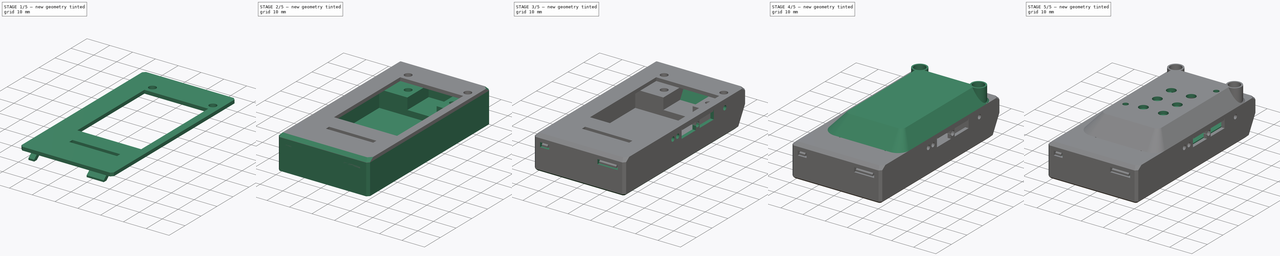
[diagram: build sequence overview — one tinted view per stage of 5, left to right]
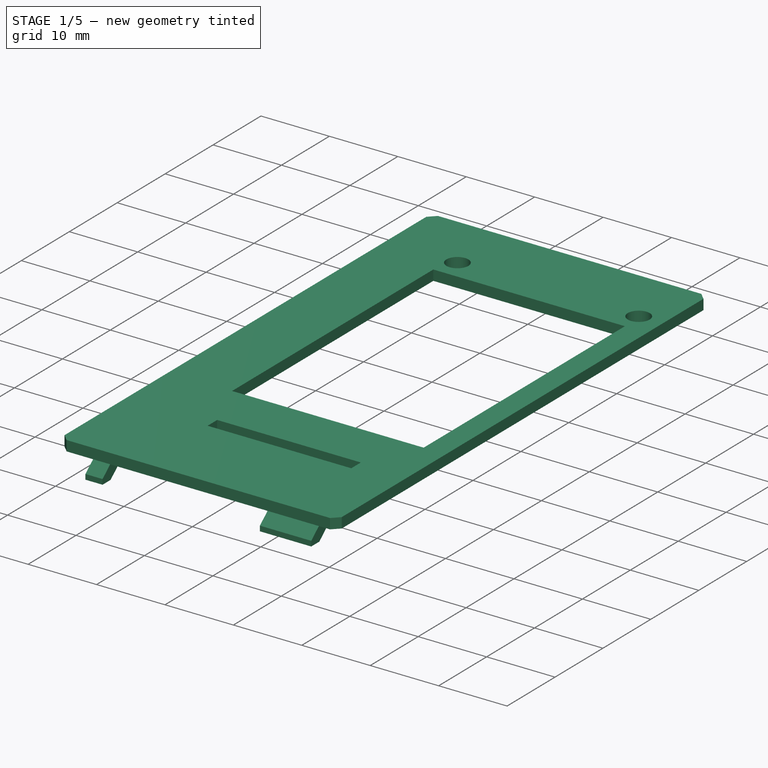
[diagram: stage 1 of 5 — iso view after this stage's code; geometry added in this stage tinted green]
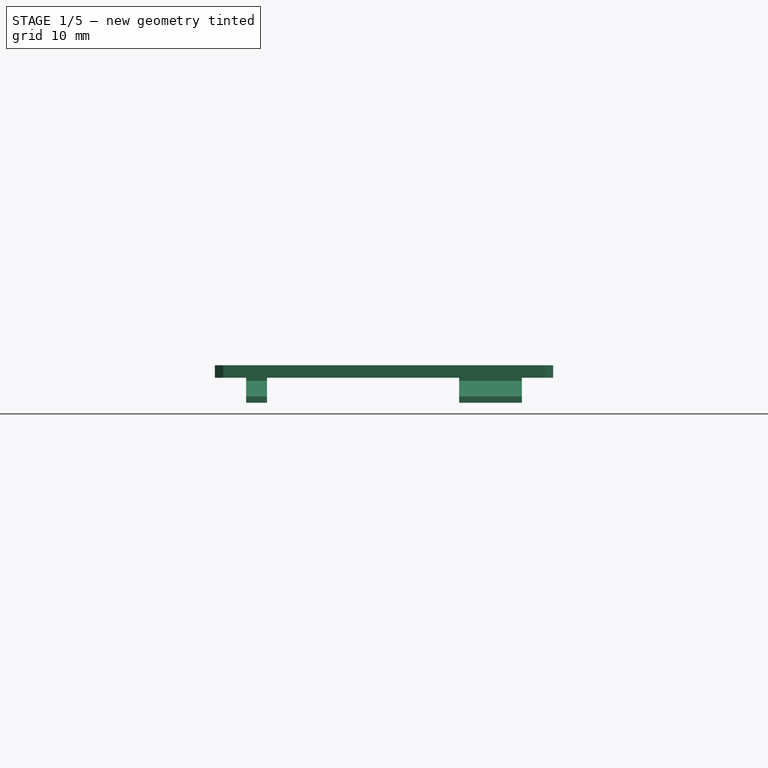
[diagram: stage 1 of 5 — front view after this stage's code; geometry added in this stage tinted green]
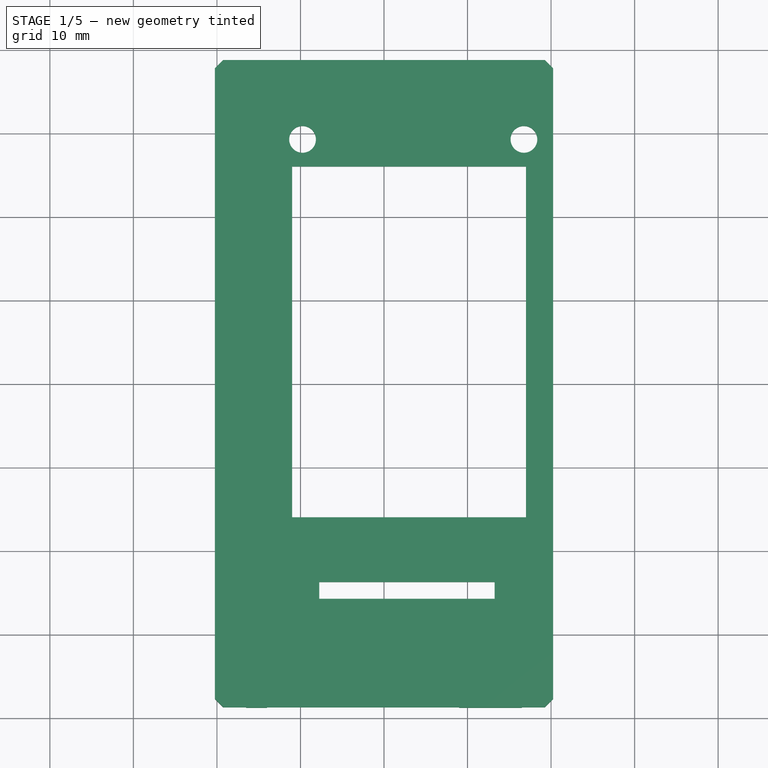
[diagram: stage 1 of 5 — top view after this stage's code; geometry added in this stage tinted green]
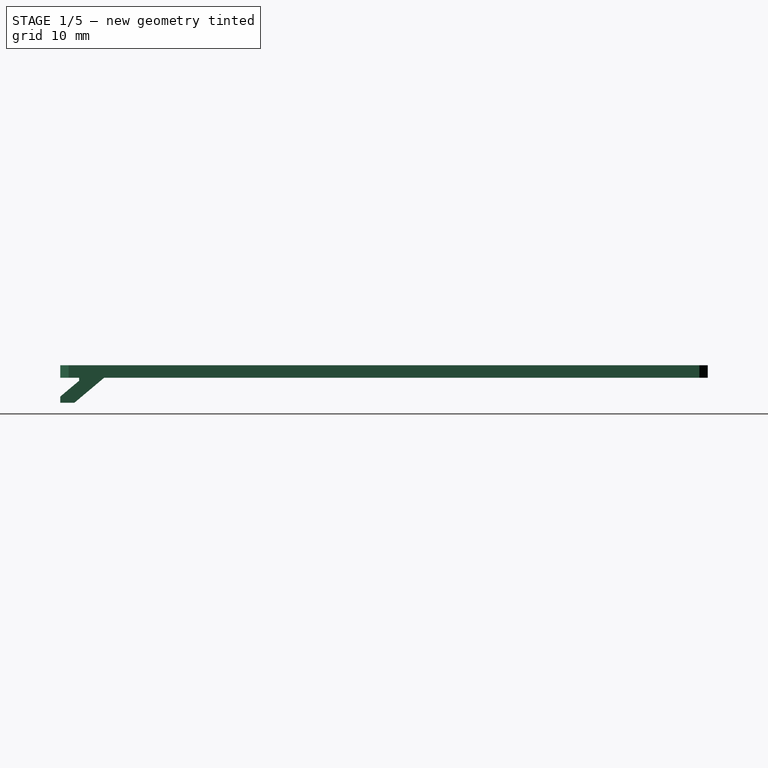
[diagram: stage 1 of 5 — right view after this stage's code; geometry added in this stage tinted green]
FCSTD DOCUMENT  (FreeCAD 0.16R6706 (Git))
Label: Explorer board case 001
License: All rights reserved
LicenseURL: http://en.wikipedia.org/wiki/All_rights_reserved
objects: Sketcher::SketchObject×33, PartDesign::Pocket×20, PartDesign::Pad×11, PartDesign::Fillet×2, PartDesign::Chamfer×2, Part::Loft×1, Part::Feature×1, Part::Cut×1
note: 102 computed .brp shape members not serialized (recipe doc carries the construction recipe); baked Part::Feature solids carry a one-line shape summary decoded from their .brp

FEATURE [PartDesign::Pad] Pad014  label="Main cover 001"
  Length = 1.5
  Length2 = 100
  Placement = pos=(0,0,13.5) rot=(0,0,1;0rad)
  Sketch = -> Sketch016
  Type = 0
FEATURE [Sketcher::SketchObject] Sketch020  label="Main cover 002 tabs pad 3mm"
  Placement = pos=(0,0,13.5) rot=(1,0,0;3.14159rad)
  Support = -> Pad014 [Face9]
  sketch-geometry (8):
    g0: LineSegment StartX=-16.5 StartY=38.75 StartZ=0 EndX=-14 EndY=38.75 EndZ=0
    g1: LineSegment StartX=-14 StartY=38.75 StartZ=0 EndX=-14 EndY=33.5 EndZ=0
    g2: LineSegment StartX=-14 StartY=33.5 StartZ=0 EndX=-16.5 EndY=33.5 EndZ=0
    g3: LineSegment StartX=-16.5 StartY=33.5 StartZ=0 EndX=-16.5 EndY=38.75 EndZ=0
    g4: LineSegment StartX=9 StartY=38.75 StartZ=0 EndX=16.5 EndY=38.75 EndZ=0
    g5: LineSegment StartX=16.5 StartY=38.75 StartZ=0 EndX=16.5 EndY=33.5 EndZ=0
    g6: LineSegment StartX=16.5 StartY=33.5 StartZ=0 EndX=9 EndY=33.5 EndZ=0
    g7: LineSegment StartX=9 StartY=33.5 StartZ=0 EndX=9 EndY=38.75 EndZ=0
  constraints (24):
    c: Coincident(g0,g1)
    c: Coincident(g1,g2)
    c: Coincident(g2,g3)
    c: Coincident(g3,g0)
    c: Horizontal(g0)
    c: Horizontal(g2)
    c: Vertical(g1)
    c: Vertical(g3)
    c: Coincident(g4,g5)
    c: Coincident(g5,g6)
    c: Coincident(g6,g7)
    c: Coincident(g7,g4)
    c: Horizontal(g4)
    c: Horizontal(g6)
    c: Vertical(g5)
    c: Vertical(g7)
    c: DistanceX(g4,g4) = 7.5
    c: DistanceY(g5,g5) = 5.25
    c: DistanceX(g0,g0) = 2.5
    c: DistanceY(g3,g3) = 5.25
    c: DistanceX(g1,g-1) = 14
    c: DistanceX(g-1,g6) = 9
    c: DistanceY(g-1,g1) = 33.5
    c: DistanceY(g-1,g6) = 33.5
FEATURE [PartDesign::Pad] Pad015  label="Main cover 002"
  Length = 3
  Length2 = 100
  Placement = pos=(0,0,13.5) rot=(0,0,1;0rad)
  Sketch = -> Sketch020
  Type = 0
FEATURE [Sketcher::SketchObject] Sketch021  label="Main cover 003 tabs side pocket through all"
  ExternalGeometry = -> [Pad015]
  Placement = pos=(-16.5,0,13.5) rot=(0.57735,-0.57735,-0.57735;2.0944rad)
  Support = -> Pad015 [Face15]
  sketch-geometry (7):
    g0: LineSegment StartX=36.5 StartY=0 StartZ=0 EndX=38.75 EndY=0 EndZ=0
    g1: LineSegment StartX=38.75 StartY=0 StartZ=0 EndX=38.75 EndY=-2.25 EndZ=0
    g2: LineSegment StartX=33.5 StartY=0 StartZ=0 EndX=37.0753 EndY=-3 EndZ=0
    g3: LineSegment StartX=37.0753 StartY=-3 StartZ=0 EndX=33.5 EndY=-3 EndZ=0
    g4: LineSegment StartX=33.5 StartY=-3 StartZ=0 EndX=33.5 EndY=0 EndZ=0
    g5: LineSegment StartX=36.5 StartY=-0.362026 StartZ=0 EndX=38.75 EndY=-2.25 EndZ=0
    g6: LineSegment StartX=36.5 StartY=0 StartZ=0 EndX=36.5 EndY=-0.362026 EndZ=0
  constraints (19):
    c: Coincident(g0,g1)
    c: Horizontal(g0)
    c: Vertical(g1)
    c: Coincident(g2,g3)
    c: Coincident(g3,g4)
    c: Coincident(g4,g2)
    c: Coincident(g5,g1)
    c: DistanceY(g1,g0) = 2.25
    c: Vertical(g4)
    c: DistanceX(g0,g0) = 2.25
    c: Coincident(g6,g0)
    c: Coincident(g6,g5)
    c: Vertical(g6)
    c: Coincident(g3,g-4)
    c: PointOnObject(g2,g-4)
    c: Angle(g2,g-4) = 0.698132
    c: Coincident(g2,g-5)
    c: Angle(g-3,g5) = 0.872665
    c: Coincident(g0,g-5)
FEATURE [PartDesign::Pocket] Pocket012015  label="Main cover 003"
  Length = 5
  Placement = pos=(0,0,13.5) rot=(0,0,1;0rad)
  Sketch = -> Sketch021
  Type = 1
FEATURE [Sketcher::SketchObject] Sketch024  label="Main cover 004 screw holes pocket through all"
  Placement = pos=(0,0,15) rot=(0,0,1;0rad)
  Support = -> Pocket012015 [Face4]
  sketch-geometry (3):
    g0: Circle CenterX=-9.75 CenterY=29.25 CenterZ=0 NormalX=0 NormalY=0 NormalZ=1 Radius=1.6
    g1: Circle CenterX=16.75 CenterY=29.25 CenterZ=0 NormalX=0 NormalY=0 NormalZ=1 Radius=1.6
    g2: LineSegment [constr] StartX=-9.75 StartY=29.25 StartZ=0 EndX=16.75 EndY=29.25 EndZ=0
  constraints (8):
    c: Radius(g0) = 1.6
    c: Radius(g1) = 1.6
    c: DistanceX(g0,g1) = 26.5
    c: Coincident(g2,g0)
    c: Coincident(g2,g1)
    c: Horizontal(g2)
    c: DistanceY(g-1,g0) = 29.25
    c: DistanceX(g0,g-1) = 9.75
FEATURE [PartDesign::Pocket] Pocket012016  label="Main cover 004"
  Length = 5
  Placement = pos=(0,0,13.5) rot=(0,0,1;0rad)
  Sketch = -> Sketch024
  Type = 1
FEATURE [Sketcher::SketchObject] Sketch026  label="Main cover 005 hole for Edison cover tab pocket through all"
  Placement = pos=(0,0,15) rot=(0,0,1;0rad)
  Support = -> Pocket012016 [Face5]
  sketch-geometry (4):
    g0: LineSegment StartX=13.25 StartY=-25.75 StartZ=0 EndX=-7.75 EndY=-25.75 EndZ=0
    g1: LineSegment StartX=-7.75 StartY=-25.75 StartZ=0 EndX=-7.75 EndY=-23.75 EndZ=0
    g2: LineSegment StartX=-7.75 StartY=-23.75 StartZ=0 EndX=13.25 EndY=-23.75 EndZ=0
    g3: LineSegment StartX=13.25 StartY=-23.75 StartZ=0 EndX=13.25 EndY=-25.75 EndZ=0
  constraints (12):
    c: Coincident(g0,g1)
    c: Coincident(g1,g2)
    c: Coincident(g2,g3)
    c: Coincident(g3,g0)
    c: Horizontal(g0)
    c: Horizontal(g2)
    c: Vertical(g1)
    c: Vertical(g3)
    c: DistanceY(g3,g3) = 2
    c: DistanceX(g0,g0) = 21
    c: DistanceX(g1,g-1) = 7.75
    c: DistanceY(g1,g-1) = 23.75
FEATURE [PartDesign::Pocket] Pocket012017  label="Main cover 005"
  Length = 5
  Placement = pos=(0,0,13.5) rot=(0,0,1;0rad)
  Sketch = -> Sketch026
  Type = 1
FEATURE [Sketcher::SketchObject] Sketch027  label="Main cover 006 angle on edison cover tab hole pocket reversed 21mm"
  ExternalGeometry = -> [Pocket012017]
  Placement = pos=(13.25,0,13.5) rot=(0.57735,-0.57735,-0.57735;2.0944rad)
  Support = -> Pocket012017 [Face15]
  sketch-geometry (3):
    g0: LineSegment StartX=25.75 StartY=1.5 StartZ=0 EndX=27.25 EndY=0 EndZ=0
    g1: LineSegment StartX=27.25 StartY=0 StartZ=0 EndX=25.75 EndY=0 EndZ=0
    g2: LineSegment StartX=25.75 StartY=0 StartZ=0 EndX=25.75 EndY=1.5 EndZ=0
  constraints (8):
    c: PointOnObject(g0,g-1)
    c: Coincident(g0,g1)
    c: Coincident(g1,g2)
    c: Coincident(g2,g0)
    c: Angle(g0,g1) = 0.785398
    c: Vertical(g2)
    c: PointOnObject(g1,g-1)
    c: Coincident(g0,g-3)
FEATURE [PartDesign::Pocket] Pocket012018  label="Main cover 006"
  Length = 21
  Placement = pos=(0,0,13.5) rot=(0,0,1;0rad)
  Reversed = true
  Sketch = -> Sketch027
  Type = 0
FEATURE [Sketcher::SketchObject] Sketch038  label="Main cover 007 hole for Edison pocket through all"
  Placement = pos=(0,0,13.5) rot=(1,0,0;3.14159rad)
  Support = -> Pocket012018 [Face4]
  sketch-geometry (4):
    g0: LineSegment StartX=-11 StartY=16 StartZ=0 EndX=17 EndY=16 EndZ=0
    g1: LineSegment StartX=17 StartY=16 StartZ=0 EndX=17 EndY=-26 EndZ=0
    g2: LineSegment StartX=17 StartY=-26 StartZ=0 EndX=-11 EndY=-26 EndZ=0
    g3: LineSegment StartX=-11 StartY=-26 StartZ=0 EndX=-11 EndY=16 EndZ=0
  constraints (12):
    c: Coincident(g0,g1)
    c: Coincident(g1,g2)
    c: Coincident(g2,g3)
    c: Coincident(g3,g0)
    c: Horizontal(g0)
    c: Horizontal(g2)
    c: Vertical(g1)
    c: Vertical(g3)
    c: DistanceX(g0,g-1) = 11
    c: DistanceX(g-1,g0) = 17
    c: DistanceY(g-1,g0) = 16
    c: DistanceY(g2,g-1) = 26
FEATURE [PartDesign::Pocket] Pocket012019  label="Main cover 007"
  Length = 5
  Placement = pos=(0,0,13.5) rot=(0,0,1;0rad)
  Sketch = -> Sketch038
  Type = 1
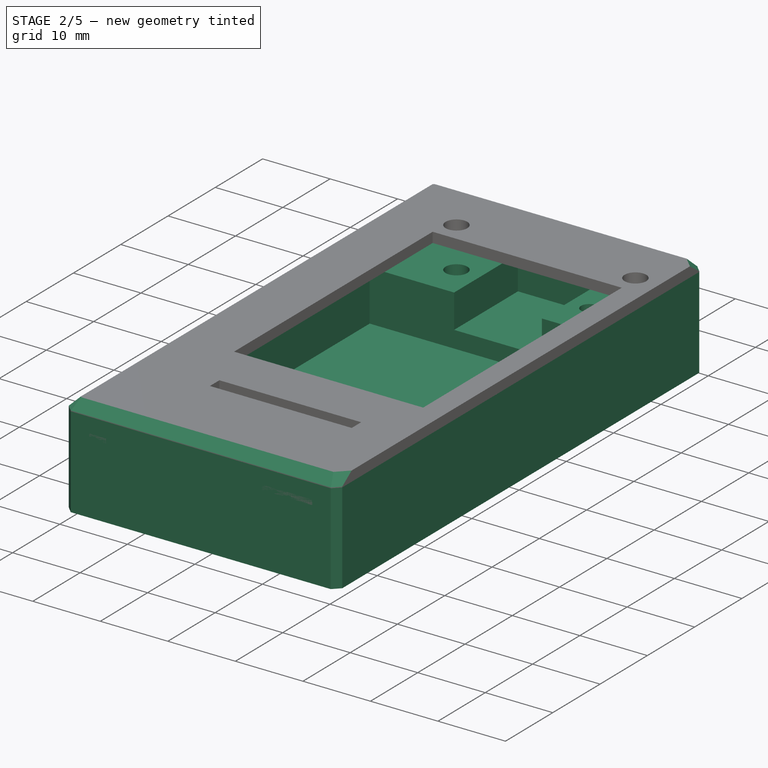
[diagram: stage 2 of 5 — iso view after this stage's code; geometry added in this stage tinted green]
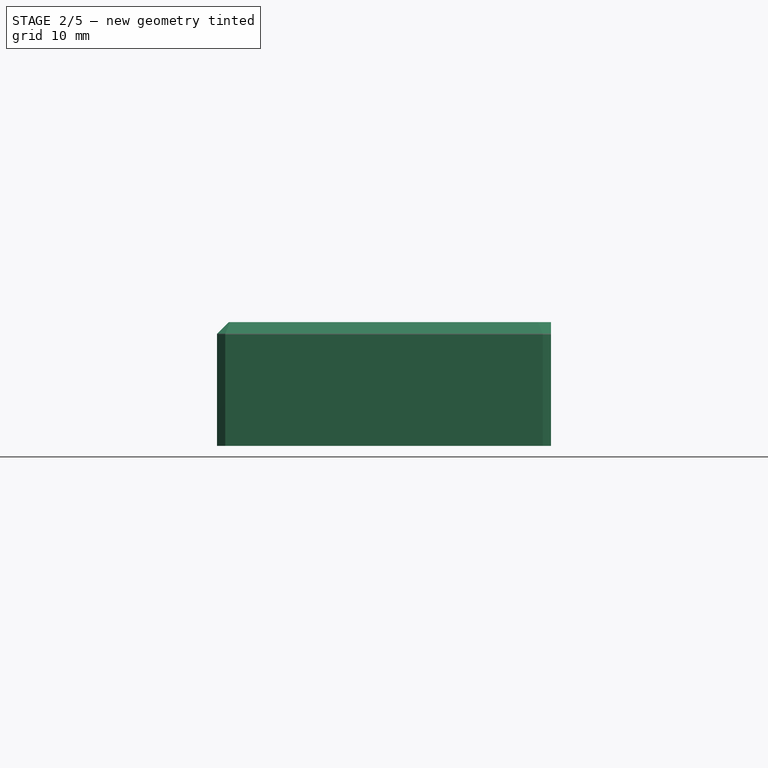
[diagram: stage 2 of 5 — front view after this stage's code; geometry added in this stage tinted green]
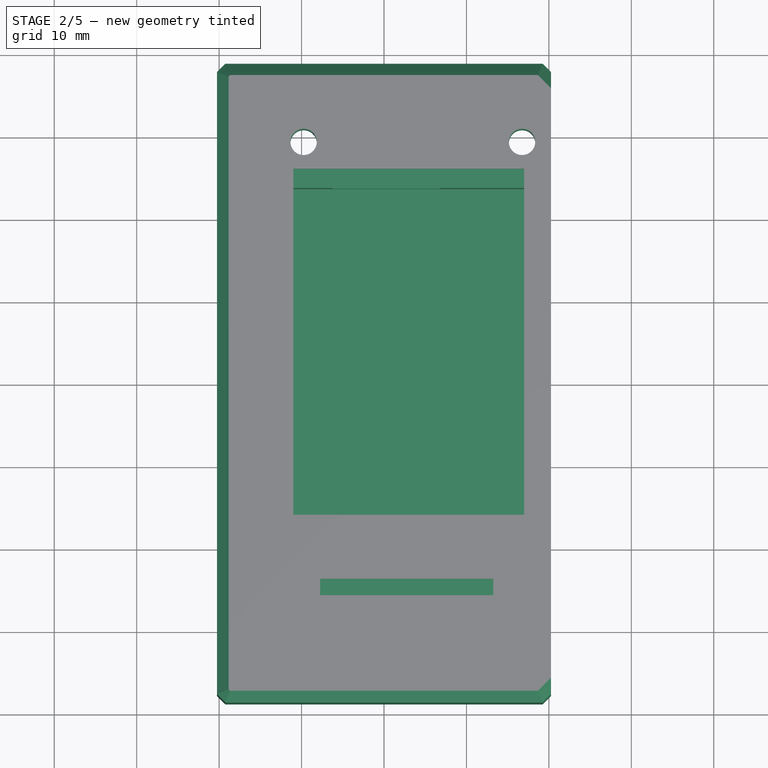
[diagram: stage 2 of 5 — top view after this stage's code; geometry added in this stage tinted green]
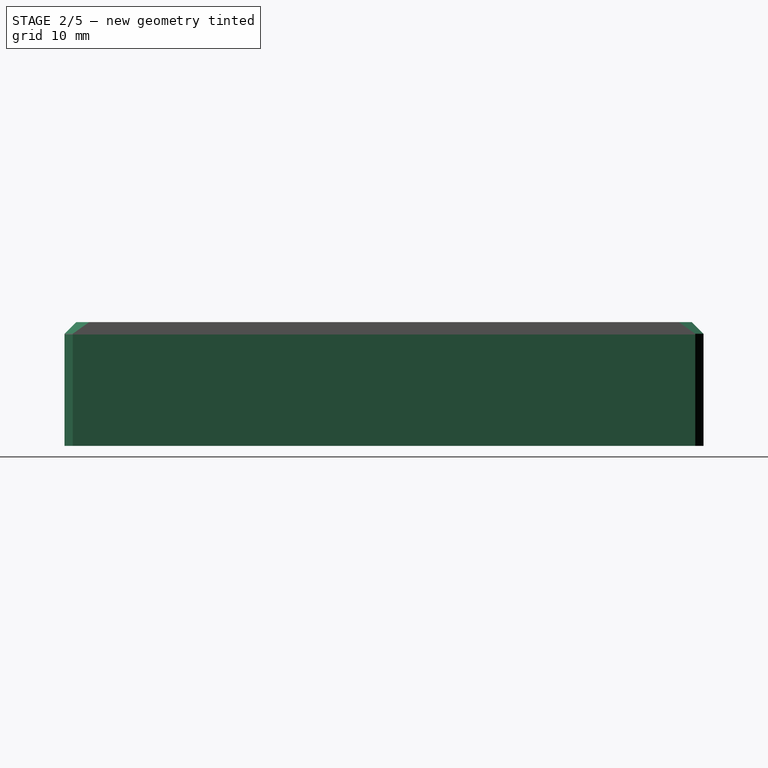
[diagram: stage 2 of 5 — right view after this stage's code; geometry added in this stage tinted green]
FEATURE [PartDesign::Pad] Pad  label="Base 001"
  Length = 13.5
  Length2 = 100
  Sketch = -> Sketch
  Type = 0
FEATURE [Sketcher::SketchObject] Sketch001  label="Base 002 main hole pocket 12mm"
  Placement = pos=(0,0,13.5) rot=(0,0,1;0rad)
  Support = -> Pad [Face10]
  sketch-geometry (4):
    g0: LineSegment StartX=-18.75 StartY=23.75 StartZ=0 EndX=18.75 EndY=23.75 EndZ=0
    g1: LineSegment StartX=18.75 StartY=23.75 StartZ=0 EndX=18.75 EndY=-37.25 EndZ=0
    g2: LineSegment StartX=18.75 StartY=-37.25 StartZ=0 EndX=-18.75 EndY=-37.25 EndZ=0
    g3: LineSegment StartX=-18.75 StartY=-37.25 StartZ=0 EndX=-18.75 EndY=23.75 EndZ=0
  constraints (12):
    c: Coincident(g0,g1)
    c: Coincident(g0,g3)
    c: Coincident(g1,g2)
    c: Coincident(g2,g3)
    c: DistanceX(g2,g2) = 37.5
    c: DistanceY(g1,g1) = 61
    c: Vertical(g3)
    c: Vertical(g1)
    c: Horizontal(g0)
    c: Horizontal(g2)
    c: DistanceY(g2,g-1) = 37.25
    c: DistanceX(g2,g-1) = 18.75
FEATURE [PartDesign::Pocket] Pocket  label="Base 002"
  Length = 12
  Sketch = -> Sketch001
  Type = 0
FEATURE [Sketcher::SketchObject] Sketch002  label="Base 003 battery connector hole pocket 9.5mm"
  Placement = pos=(0,0,13.5) rot=(0,0,1;0rad)
  Support = -> Pocket [Face5]
  sketch-geometry (4):
    g0: LineSegment StartX=6.75 StartY=23.75 StartZ=0 EndX=-6.25 EndY=23.75 EndZ=0
    g1: LineSegment StartX=-6.25 StartY=23.75 StartZ=0 EndX=-6.25 EndY=37.25 EndZ=0
    g2: LineSegment StartX=-6.25 StartY=37.25 StartZ=0 EndX=6.75 EndY=37.25 EndZ=0
    g3: LineSegment StartX=6.75 StartY=37.25 StartZ=0 EndX=6.75 EndY=23.75 EndZ=0
  constraints (12):
    c: Coincident(g0,g1)
    c: Coincident(g0,g3)
    c: Coincident(g1,g2)
    c: Coincident(g2,g3)
    c: DistanceY(g1,g1) = 13.5
    c: Vertical(g1)
    c: Horizontal(g2)
    c: Horizontal(g0)
    c: DistanceX(g2,g2) = 13
    c: Vertical(g3)
    c: DistanceX(g-1,g0) = 6.75
    c: DistanceY(g-1,g0) = 23.75
FEATURE [PartDesign::Pocket] Pocket012020  label="Base 003"
  Length = 9.5
  Sketch = -> Sketch002
  Type = 0
FEATURE [Sketcher::SketchObject] Sketch004  label="Base 004 either side of battery connector pocket 4.5mm"
  Placement = pos=(0,0,13.5) rot=(0,0,1;0rad)
  Support = -> Pocket012020 [Face5]
  sketch-geometry (8):
    g0: LineSegment StartX=6.75 StartY=23.75 StartZ=0 EndX=18.75 EndY=23.75 EndZ=0
    g1: LineSegment StartX=18.75 StartY=23.75 StartZ=0 EndX=18.75 EndY=37.25 EndZ=0
    g2: LineSegment StartX=18.75 StartY=37.25 StartZ=0 EndX=6.75 EndY=37.25 EndZ=0
    g3: LineSegment StartX=6.75 StartY=37.25 StartZ=0 EndX=6.75 EndY=23.75 EndZ=0
    g4: LineSegment StartX=-18.75 StartY=23.75 StartZ=0 EndX=-6.25 EndY=23.75 EndZ=0
    g5: LineSegment StartX=-6.25 StartY=23.75 StartZ=0 EndX=-6.25 EndY=37.25 EndZ=0
    g6: LineSegment StartX=-6.25 StartY=37.25 StartZ=0 EndX=-18.75 EndY=37.25 EndZ=0
    g7: LineSegment StartX=-18.75 StartY=37.25 StartZ=0 EndX=-18.75 EndY=23.75 EndZ=0
  constraints (26):
    c: Coincident(g0,g1)
    c: Coincident(g0,g3)
    c: Coincident(g1,g2)
    c: Coincident(g2,g3)
    c: Horizontal(g2)
    c: Horizontal(g0)
    c: Vertical(g3)
    c: Vertical(g1)
    c: Coincident(g4,g5)
    c: Coincident(g5,g6)
    c: Coincident(g6,g7)
    c: Coincident(g7,g4)
    c: Horizontal(g4)
    c: Horizontal(g6)
    c: Vertical(g5)
    c: Vertical(g7)
    c: DistanceX(g6,g6) = 12.5
    c: DistanceX(g2,g2) = 12
    c: DistanceY(g7,g7) = 13.5
    c: Equal(g1,g3)
    c: Equal(g3,g5)
    c: Equal(g5,g7)
    c: DistanceX(g4,g-1) = 6.25
    c: DistanceY(g-1,g4) = 23.75
    c: DistanceY(g-1,g0) = 23.75
    c: DistanceX(g-1,g0) = 6.75
FEATURE [PartDesign::Pocket] Pocket012021  label="Base 004"
  Length = 4.5
  Sketch = -> Sketch004
  Type = 0
FEATURE [Sketcher::SketchObject] Sketch003  label="Base 005 screw holes pocket through all"
  Placement = pos=(0,0,9) rot=(0,0,1;0rad)
  Support = -> Pocket012021 [Face5]
  sketch-geometry (5):
    g0: Circle CenterX=16.75 CenterY=29.25 CenterZ=0 NormalX=0 NormalY=0 NormalZ=1 Radius=1.6
    g1: Circle CenterX=-9.75 CenterY=29.25 CenterZ=0 NormalX=0 NormalY=0 NormalZ=1 Radius=1.6
    g2: LineSegment [constr] StartX=-9.75 StartY=29.25 StartZ=0 EndX=16.75 EndY=29.25 EndZ=0
    g3: LineSegment [constr] StartX=9.75 StartY=29.25 StartZ=0 EndX=9.75 EndY=29.45 EndZ=0
    g4: Circle CenterX=9.75 CenterY=29.45 CenterZ=0 NormalX=0 NormalY=0 NormalZ=1 Radius=1.2
  constraints (14):
    c: Radius(g0) = 1.6
    c: Radius(g1) = 1.6
    c: Coincident(g2,g1)
    c: Coincident(g2,g0)
    c: Horizontal(g2)
    c: DistanceX(g2,g2) = 26.5
    c: PointOnObject(g3,g2)
    c: Vertical(g3)
    c: DistanceX(g3,g0) = 7
    c: DistanceY(g3,g3) = 0.2
    c: Coincident(g4,g3)
    c: Radius(g4) = 1.2
    c: DistanceY(g-1,g1) = 29.25
    c: DistanceX(g1,g-1) = 9.75
FEATURE [PartDesign::Pocket] Pocket012022  label="Base 005"
  Length = 5
  Sketch = -> Sketch003
  Type = 1
FEATURE [Sketcher::SketchObject] Sketch006  label="Base 006 bolt holes pocket 3mm"
  Placement = pos=(0,0,0) rot=(1,0,0;3.14159rad)
  Support = -> Pocket012022 [Face15]
  sketch-geometry (2):
    g0: Circle CenterX=16.75 CenterY=-29.25 CenterZ=0 NormalX=0 NormalY=0 NormalZ=1 Radius=2.5
    g1: Circle CenterX=-9.75 CenterY=-29.25 CenterZ=0 NormalX=0 NormalY=0 NormalZ=1 Radius=2.5
  constraints (6):
    c: Radius(g0) = 2.5
    c: Radius(g1) = 2.5
    c: DistanceY(g1,g-1) = 29.25
    c: DistanceX(g1,g-1) = 9.75
    c: DistanceX(g-1,g0) = 16.75
    c: DistanceY(g0,g-1) = 29.25
FEATURE [PartDesign::Pocket] Pocket012023  label="Base 006"
  Length = 3
  Sketch = -> Sketch006
  Type = 0
FEATURE [Sketcher::SketchObject] Sketch019  label="Base 010 holes for cover tabs pocket through all"
  Placement = pos=(0,-37.25,0) rot=(0,0.707107,0.707107;3.14159rad)
  Support = -> Pad016 [Face24]
  sketch-geometry (8):
    g0: LineSegment StartX=-17.25 StartY=12 StartZ=0 EndX=-8.25 EndY=12 EndZ=0
    g1: LineSegment StartX=-8.25 StartY=12 StartZ=0 EndX=-8.25 EndY=10 EndZ=0
    g2: LineSegment StartX=-8.25 StartY=10 StartZ=0 EndX=-17.25 EndY=10 EndZ=0
    g3: LineSegment StartX=-17.25 StartY=10 StartZ=0 EndX=-17.25 EndY=12 EndZ=0
    g4: LineSegment StartX=13.25 StartY=12 StartZ=0 EndX=17.25 EndY=12 EndZ=0
    g5: LineSegment StartX=17.25 StartY=12 StartZ=0 EndX=17.25 EndY=10 EndZ=0
    g6: LineSegment StartX=17.25 StartY=10 StartZ=0 EndX=13.25 EndY=10 EndZ=0
    g7: LineSegment StartX=13.25 StartY=10 StartZ=0 EndX=13.25 EndY=12 EndZ=0
  constraints (24):
    c: Coincident(g0,g1)
    c: Coincident(g1,g2)
    c: Coincident(g2,g3)
    c: Coincident(g3,g0)
    c: Horizontal(g0)
    c: Horizontal(g2)
    c: Vertical(g1)
    c: Vertical(g3)
    c: Coincident(g4,g5)
    c: Coincident(g5,g6)
    c: Coincident(g6,g7)
    c: Coincident(g7,g4)
    c: Horizontal(g4)
    c: Horizontal(g6)
    c: Vertical(g5)
    c: Vertical(g7)
    c: DistanceY(g5,g5) = 2
    c: DistanceY(g1,g1) = 2
    c: DistanceX(g0,g0) = 9
    c: DistanceX(g4,g4) = 4
    c: DistanceX(g1,g-1) = 8.25
    c: DistanceY(g-1,g1) = 10
    c: DistanceY(g-1,g6) = 10
    c: DistanceX(g-1,g6) = 13.25
FEATURE [Sketcher::SketchObject] Sketch040  label="Main cover 008 USB connector space pad reverse 1.5mm"
  Placement = pos=(20.25,0,13.5) rot=(0.57735,0.57735,0.57735;2.0944rad)
  Support = -> Pocket012019 [Face9]
  sketch-geometry (11):
    g0: LineSegment StartX=17.6 StartY=0 StartZ=0 EndX=-2.2 EndY=0 EndZ=0
    g1: LineSegment StartX=-2.2 StartY=0 StartZ=0 EndX=-2.2 EndY=-0.6 EndZ=0
    g2: LineSegment StartX=-2.2 StartY=-0.6 StartZ=0 EndX=6.5 EndY=-0.6 EndZ=0
    g3: LineSegment StartX=8.9 StartY=-0.6 StartZ=0 EndX=17.6 EndY=-0.6 EndZ=0
    g4: LineSegment StartX=17.6 StartY=-0.6 StartZ=0 EndX=17.6 EndY=0 EndZ=0
    g5: LineSegment StartX=6.5 StartY=-0.6 StartZ=0 EndX=6.5 EndY=-2 EndZ=0
    g6: LineSegment StartX=8.9 StartY=-0.6 StartZ=0 EndX=8.9 EndY=-2 EndZ=0
    g7: ArcOfCircle CenterX=7.7 CenterY=-2 CenterZ=0 NormalX=0 NormalY=0 NormalZ=1 Radius=1 StartAngle=0 EndAngle=3.14159
    g8: LineSegment [constr] StartX=6.5 StartY=-2 StartZ=0 EndX=8.9 EndY=-2 EndZ=0
    g9: LineSegment StartX=6.5 StartY=-2 StartZ=0 EndX=6.7 EndY=-2 EndZ=0
    g10: LineSegment StartX=8.9 StartY=-2 StartZ=0 EndX=8.7 EndY=-2 EndZ=0
  constraints (33):
    c: PointOnObject(g0,g-1)
    c: PointOnObject(g0,g-1)
    c: Coincident(g0,g1)
    c: Coincident(g1,g2)
    c: Horizontal(g2)
    c: Horizontal(g3)
    c: Coincident(g3,g4)
    c: Coincident(g4,g0)
    c: Vertical(g4)
    c: Vertical(g1)
    c: DistanceX(g0,g-1) = 2.2
    c: DistanceX(g-1,g0) = 17.6
    c: DistanceX(g2,g2) = 8.7
    c: DistanceX(g3,g3) = 8.7
    c: DistanceY(g3,g0) = 0.6
    c: DistanceY(g1,g1) = 0.6
    c: Coincident(g5,g2)
    c: Vertical(g5)
    c: Coincident(g6,g3)
    c: Vertical(g6)
    c: DistanceY(g6,g6) = 1.4
    c: DistanceY(g5,g5) = 1.4
    c: PointOnObject(g7,g8)
    c: Coincident(g5,g8)
    c: Coincident(g6,g8)
    c: Radius(g7) = 1
    c: Coincident(g9,g5)
    c: PointOnObject(g9,g8)
    c: Coincident(g10,g6)
    c: PointOnObject(g10,g8)
    c: Coincident(g7,g9)
    c: Coincident(g7,g10)
    c: Equal(g9,g10)
FEATURE [PartDesign::Pad] Pad017  label="Main cover 008"
  Length = 1.5
  Length2 = 100
  Placement = pos=(0,0,13.5) rot=(0,0,1;0rad)
  Reversed = true
  Sketch = -> Sketch040
  Type = 0
FEATURE [PartDesign::Chamfer] Chamfer001  label="Main cover 009 chamfer 3 edges 1.4mm"
  Base = -> Pad017 [Edge39,Edge10,Edge4,Edge7,Edge38,Edge40,Edge42]
  Placement = pos=(0,0,13.5) rot=(0,0,1;0rad)
  Size = 1.4
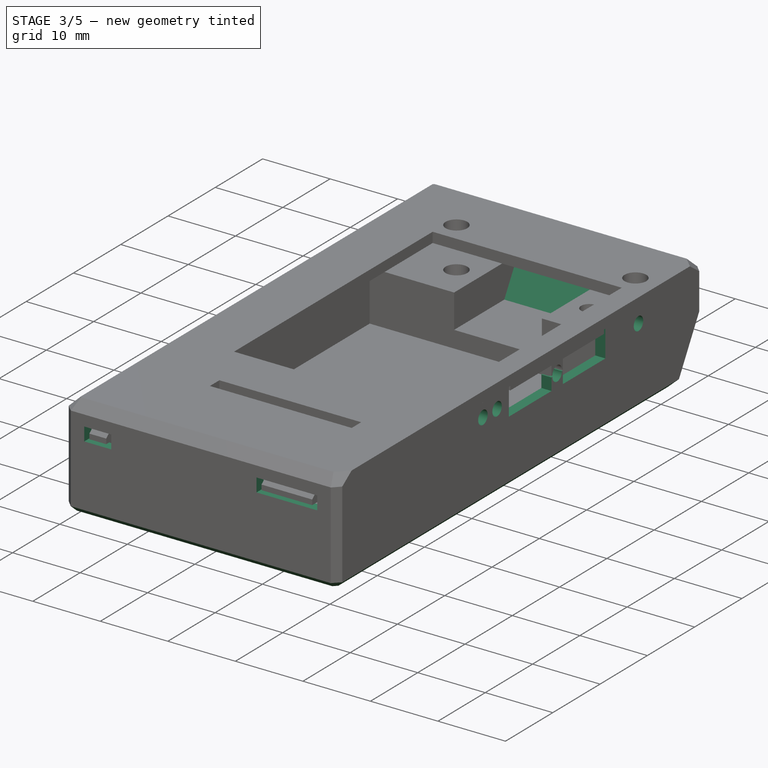
[diagram: stage 3 of 5 — iso view after this stage's code; geometry added in this stage tinted green]
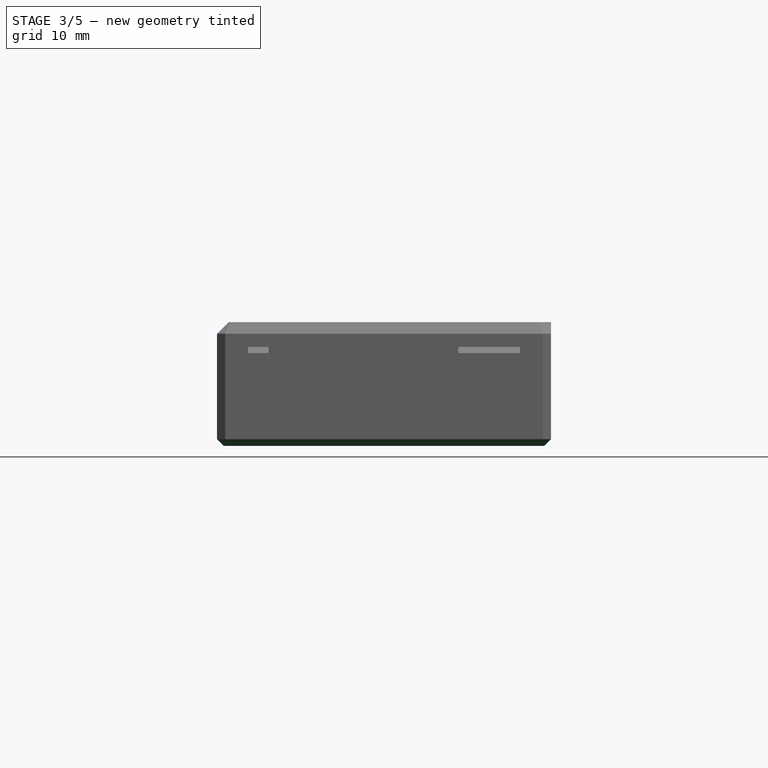
[diagram: stage 3 of 5 — front view after this stage's code; geometry added in this stage tinted green]
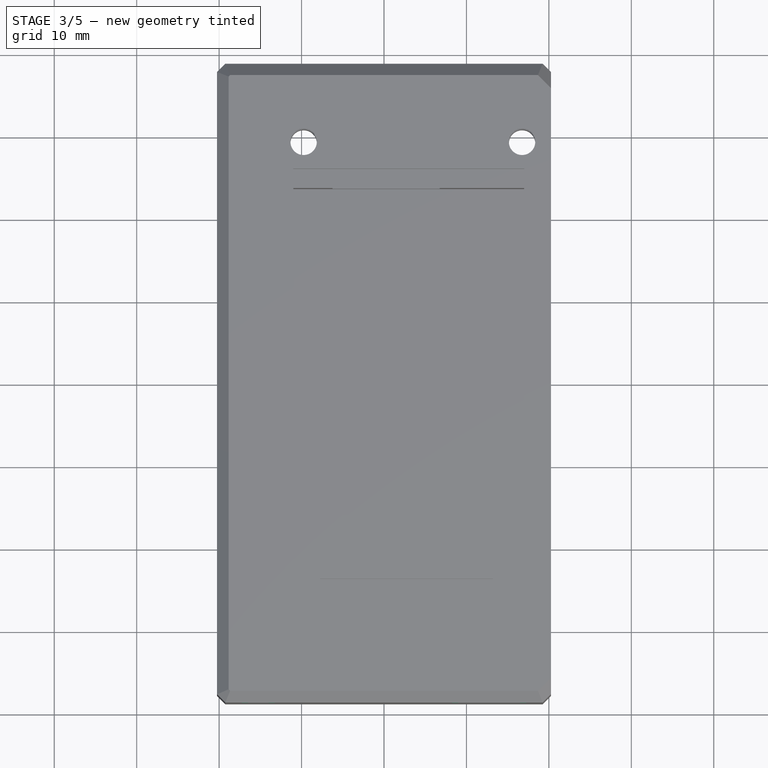
[diagram: stage 3 of 5 — top view after this stage's code; geometry added in this stage tinted green]
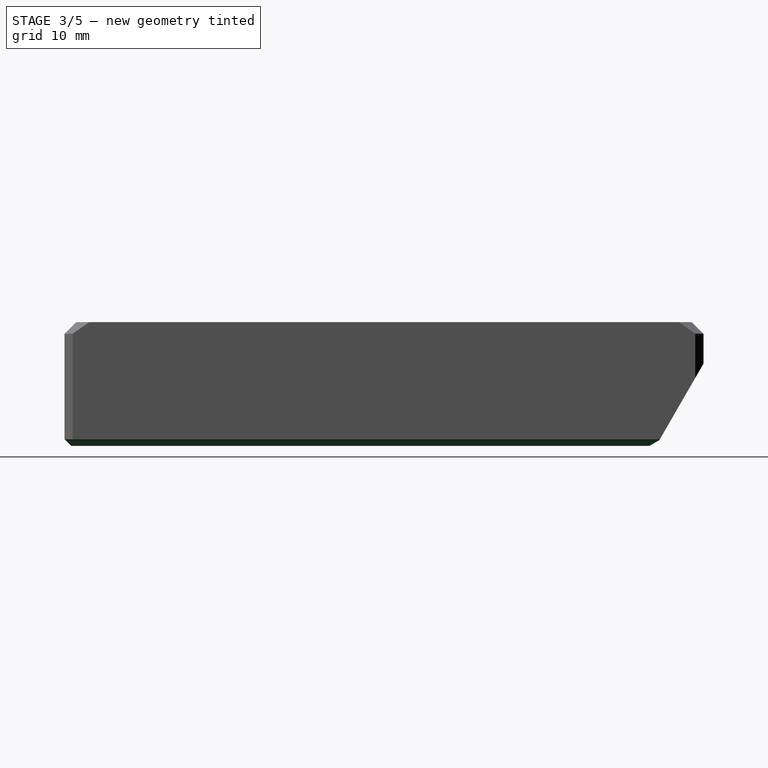
[diagram: stage 3 of 5 — right view after this stage's code; geometry added in this stage tinted green]
FEATURE [Sketcher::SketchObject] Sketch007  label="Base 007 USB hole pocket 1.5"
  Placement = pos=(20.25,0,0) rot=(0.57735,0.57735,0.57735;2.0944rad)
  Support = -> Pocket012023 [Face24]
  sketch-geometry (14):
    g0: LineSegment StartX=17.9 StartY=13.5 StartZ=0 EndX=17.9 EndY=9.5 EndZ=0
    g1: LineSegment StartX=-2.5 StartY=9.5 StartZ=0 EndX=-2.5 EndY=13.5 EndZ=0
    g2: Circle CenterX=24.9 CenterY=11.5 CenterZ=0 NormalX=0 NormalY=0 NormalZ=1 Radius=1
    g3: LineSegment StartX=6.5 StartY=11.3 StartZ=0 EndX=6.5 EndY=9.5 EndZ=0
    g4: LineSegment StartX=8.9 StartY=11.3 StartZ=0 EndX=8.9 EndY=9.5 EndZ=0
    g5: LineSegment StartX=-2.5 StartY=9.5 StartZ=0 EndX=6.5 EndY=9.5 EndZ=0
    g6: LineSegment StartX=17.9 StartY=13.5 StartZ=0 EndX=-2.5 EndY=13.5 EndZ=0
    g7: LineSegment StartX=17.9 StartY=9.5 StartZ=0 EndX=8.9 EndY=9.5 EndZ=0
    g8: LineSegment [constr] StartX=6.5 StartY=11.3 StartZ=0 EndX=8.9 EndY=11.3 EndZ=0
    g9: Circle CenterX=-5 CenterY=11.5 CenterZ=0 NormalX=0 NormalY=0 NormalZ=1 Radius=1
    g10: Circle CenterX=-8 CenterY=11.5 CenterZ=0 NormalX=0 NormalY=0 NormalZ=1 Radius=1
    g11: LineSegment StartX=6.5 StartY=11.3 StartZ=0 EndX=6.7 EndY=11.3 EndZ=0
    g12: LineSegment StartX=8.9 StartY=11.3 StartZ=0 EndX=8.7 EndY=11.3 EndZ=0
    g13: ArcOfCircle CenterX=7.7 CenterY=11.3 CenterZ=0 NormalX=0 NormalY=0 NormalZ=1 Radius=1 StartAngle=3.14159 EndAngle=6.28319
  constraints (43):
    c: Vertical(g0)
    c: Vertical(g1)
    c: Radius(g2) = 1
    c: DistanceY(g2,g0) = 2
    c: DistanceX(g0,g2) = 7
    c: DistanceX(g1,g-1) = 2.5
    c: DistanceY(g-1,g1) = 9.5
    c: Vertical(g3)
    c: Vertical(g4)
    c: DistanceX(g4,g0) = 9
    c: DistanceX(g1,g3) = 9
    c: DistanceX(g1,g0) = 20.4
    c: DistanceY(g1,g1) = 4
    c: Coincident(g5,g1)
    c: Horizontal(g5)
    c: Coincident(g3,g5)
    c: Coincident(g6,g0)
    c: Horizontal(g6)
    c: Coincident(g7,g0)
    c: Horizontal(g7)
    c: Coincident(g4,g7)
    c: DistanceY(g0,g0) = 4
    c: DistanceY(g-1,g4) = 9.5
    c: DistanceY(g3,g3) = 1.8
    c: Coincident(g8,g3)
    c: Coincident(g8,g4)
    c: Horizontal(g8)
    c: Coincident(g6,g1)
    c: Radius(g10) = 1
    c: Radius(g9) = 1
    c: DistanceY(g9,g1) = 2
    c: DistanceY(g10,g1) = 2
    c: DistanceX(g9,g1) = 2.5
    c: DistanceX(g10,g9) = 3
    c: Coincident(g11,g3)
    c: PointOnObject(g11,g8)
    c: Coincident(g12,g4)
    c: PointOnObject(g12,g8)
    c: PointOnObject(g13,g8)
    c: Coincident(g13,g11)
    c: Coincident(g13,g12)
    c: Radius(g13) = 1
    c: Equal(g11,g12)
FEATURE [PartDesign::Pocket] Pocket012024  label="Base 007"
  Length = 1.5
  Sketch = -> Sketch007
  Type = 0
FEATURE [Sketcher::SketchObject] Sketch017  label="Base 008 trim one end pocket through all"
  Placement = pos=(20.25,0,0) rot=(0.57735,0.57735,0.57735;2.0944rad)
  Support = -> Pocket012024 [Face33]
  sketch-geometry (3):
    g0: LineSegment StartX=38.7735 StartY=10 StartZ=0 EndX=33 EndY=0 EndZ=0
    g1: LineSegment StartX=33 StartY=0 StartZ=0 EndX=38.7735 EndY=0 EndZ=0
    g2: LineSegment StartX=38.7735 StartY=0 StartZ=0 EndX=38.7735 EndY=10 EndZ=0
  constraints (9):
    c: Coincident(g0,g1)
    c: Coincident(g1,g2)
    c: Coincident(g2,g0)
    c: DistanceY(g1,g0) = 10
    c: Angle(g1,g0) = 1.0472
    c: DistanceX(g-1,g0) = 33
    c: Horizontal(g1)
    c: Vertical(g2)
    c: DistanceY(g-1,g0) = 0
FEATURE [PartDesign::Pocket] Pocket012025  label="Base 008"
  Length = 5
  Sketch = -> Sketch017
  Type = 1
FEATURE [PartDesign::Pad] Pad016  label="Base 009"
  Length = 10
  Length2 = 100
  Sketch = -> Sketch018
  Type = 2
FEATURE [PartDesign::Pocket] Pocket012026  label="Base 010"
  Length = 5
  Sketch = -> Sketch019
  Type = 1
FEATURE [Sketcher::SketchObject] Sketch022  label="Base 011 angle on tab1 pocket reversed 9mm"
  ExternalGeometry = -> [Pocket012026]
  Placement = pos=(17.25,0,0) rot=(0.57735,-0.57735,-0.57735;2.0944rad)
  Support = -> Pocket012026 [Face46]
  sketch-geometry (3):
    g0: LineSegment StartX=38.75 StartY=12 StartZ=0 EndX=37.25 EndY=13.5 EndZ=0
    g1: LineSegment StartX=37.25 StartY=13.5 StartZ=0 EndX=37.25 EndY=12 EndZ=0
    g2: LineSegment StartX=37.25 StartY=12 StartZ=0 EndX=38.75 EndY=12 EndZ=0
  constraints (7):
    c: Coincident(g0,g1)
    c: Coincident(g0,g2)
    c: Coincident(g1,g2)
    c: Angle(g0,g2) = 0.785398
    c: Vertical(g1)
    c: Coincident(g0,g-4)
    c: Coincident(g1,g-3)
FEATURE [PartDesign::Pocket] Pocket012027  label="Base 011"
  Length = 9
  Reversed = true
  Sketch = -> Sketch022
  Type = 0
FEATURE [Sketcher::SketchObject] Sketch039  label="Base 012 angle on tab1 pocket reversed 4mm"
  ExternalGeometry = -> [Pocket012027]
  Placement = pos=(-13.25,0,0) rot=(0.57735,-0.57735,-0.57735;2.0944rad)
  Support = -> Pocket012027 [Face42]
  sketch-geometry (3):
    g0: LineSegment StartX=38.75 StartY=12 StartZ=0 EndX=37.25 EndY=12 EndZ=0
    g1: LineSegment StartX=37.25 StartY=12 StartZ=0 EndX=37.25 EndY=13.5 EndZ=0
    g2: LineSegment StartX=37.25 StartY=13.5 StartZ=0 EndX=38.75 EndY=12 EndZ=0
  constraints (7):
    c: Coincident(g0,g1)
    c: Vertical(g1)
    c: Coincident(g1,g2)
    c: Coincident(g2,g0)
    c: Angle(g2,g0) = 0.785398
    c: Coincident(g0,g-4)
    c: Coincident(g0,g-3)
FEATURE [PartDesign::Pocket] Pocket012028  label="Base 012"
  Length = 4
  Reversed = true
  Sketch = -> Sketch039
  Type = 0
FEATURE [PartDesign::Chamfer] Chamfer  label="Base 013 chamfer bottom outer edges 0.8mm"
  Base = -> Pocket012028 [Edge99,Edge100,Edge101,Edge96,Edge97,Edge98]
  Size = 0.8
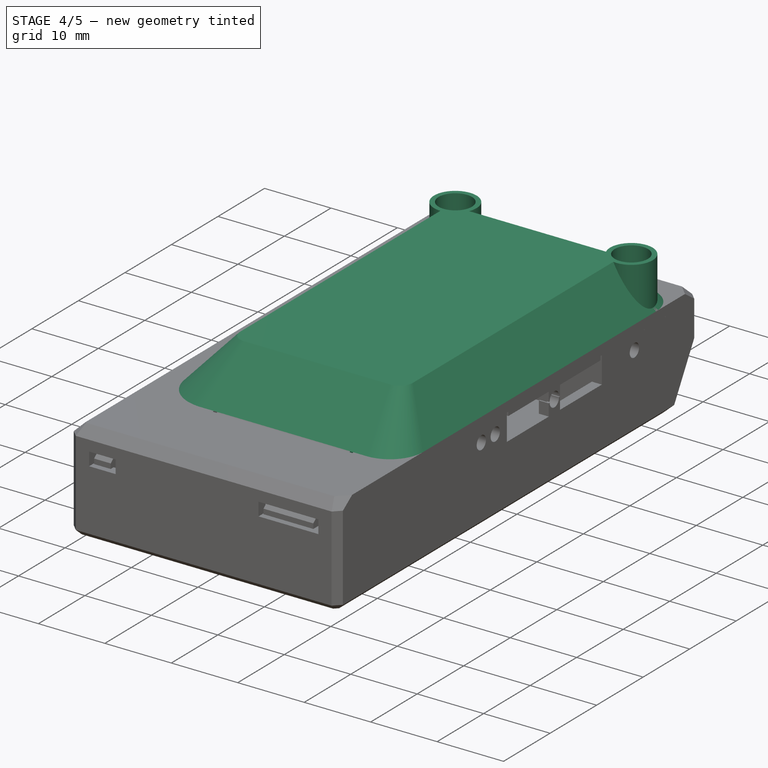
[diagram: stage 4 of 5 — iso view after this stage's code; geometry added in this stage tinted green]
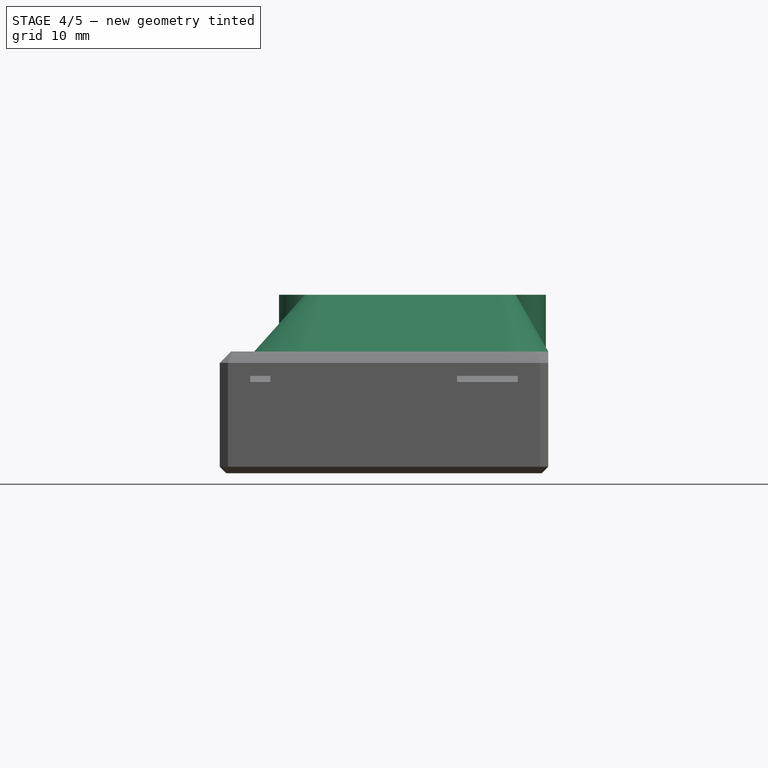
[diagram: stage 4 of 5 — front view after this stage's code; geometry added in this stage tinted green]
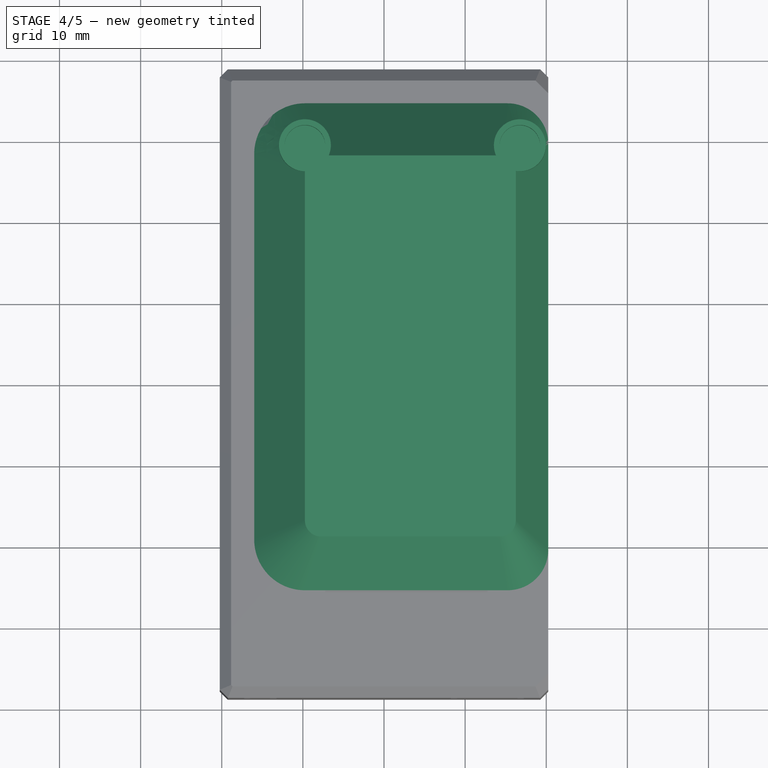
[diagram: stage 4 of 5 — top view after this stage's code; geometry added in this stage tinted green]
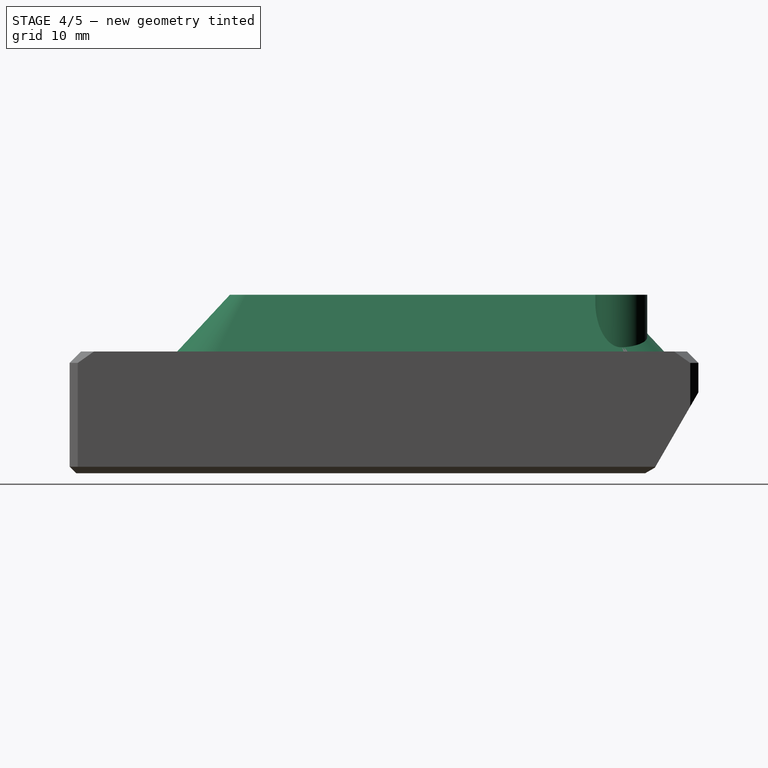
[diagram: stage 4 of 5 — right view after this stage's code; geometry added in this stage tinted green]
FEATURE [Sketcher::SketchObject] Sketch  label="Base 001 base block pad 13.5mm"
  sketch-geometry (12):
    g0: LineSegment [constr] StartX=-20.25 StartY=38.75 StartZ=0 EndX=20.25 EndY=38.75 EndZ=0
    g1: LineSegment [constr] StartX=20.25 StartY=38.75 StartZ=0 EndX=20.25 EndY=-38.75 EndZ=0
    g2: LineSegment [constr] StartX=20.25 StartY=-38.75 StartZ=0 EndX=-20.25 EndY=-38.75 EndZ=0
    g3: LineSegment [constr] StartX=-20.25 StartY=-38.75 StartZ=0 EndX=-20.25 EndY=38.75 EndZ=0
    g4: LineSegment StartX=-19.25 StartY=38.75 StartZ=0 EndX=19.25 EndY=38.75 EndZ=0
    g5: LineSegment StartX=-20.25 StartY=37.75 StartZ=0 EndX=-20.25 EndY=-37.75 EndZ=0
    g6: LineSegment StartX=-19.25 StartY=-38.75 StartZ=0 EndX=19.25 EndY=-38.75 EndZ=0
    g7: LineSegment StartX=20.25 StartY=-37.75 StartZ=0 EndX=20.25 EndY=37.75 EndZ=0
    g8: LineSegment StartX=-20.25 StartY=37.75 StartZ=0 EndX=-19.25 EndY=38.75 EndZ=0
    g9: LineSegment StartX=-20.25 StartY=-37.75 StartZ=0 EndX=-19.25 EndY=-38.75 EndZ=0
    g10: LineSegment StartX=19.25 StartY=-38.75 StartZ=0 EndX=20.25 EndY=-37.75 EndZ=0
    g11: LineSegment StartX=19.25 StartY=38.75 StartZ=0 EndX=20.25 EndY=37.75 EndZ=0
  constraints (36):
    c: Coincident(g0,g1)
    c: Coincident(g1,g2)
    c: Coincident(g2,g3)
    c: Coincident(g3,g0)
    c: Horizontal(g0)
    c: Horizontal(g2)
    c: Vertical(g1)
    c: Vertical(g3)
    c: DistanceY(g3,g3) = 77.5
    c: DistanceX(g0,g0) = 40.5
    c: Symmetric(g0,g2,g-1)
    c: Symmetric(g0,g0,g-2)
    c: PointOnObject(g4,g0)
    c: PointOnObject(g4,g0)
    c: PointOnObject(g5,g3)
    c: PointOnObject(g5,g3)
    c: PointOnObject(g6,g2)
    c: PointOnObject(g6,g2)
    c: PointOnObject(g7,g1)
    c: PointOnObject(g7,g1)
    c: DistanceX(g0,g4) = 1
    c: DistanceX(g4,g0) = 1
    c: DistanceY(g5,g0) = 1
    c: DistanceY(g2,g5) = 1
    c: DistanceX(g2,g6) = 1
    c: DistanceX(g6,g1) = 1
    c: DistanceY(g1,g7) = 1
    c: DistanceY(g7,g0) = 1
    c: Coincident(g8,g5)
    c: Coincident(g4,g8)
    c: Coincident(g9,g5)
    c: Coincident(g9,g6)
    c: Coincident(g10,g6)
    c: Coincident(g10,g7)
    c: Coincident(g11,g4)
    c: Coincident(g11,g7)
FEATURE [Sketcher::SketchObject] Sketch008  label="Battery cover 001 pad 0.5"
  Placement = pos=(0,0,9) rot=(0,0,1;0rad)
  sketch-geometry (12):
    g0: LineSegment StartX=18.25 StartY=-36.75 StartZ=0 EndX=18.25 EndY=36.75 EndZ=0
    g1: LineSegment StartX=18.25 StartY=36.75 StartZ=0 EndX=6.75 EndY=36.75 EndZ=0
    g2: LineSegment StartX=6.75 StartY=36.75 StartZ=0 EndX=6.75 EndY=23.75 EndZ=0
    g3: LineSegment StartX=6.75 StartY=23.75 StartZ=0 EndX=-6.25 EndY=23.75 EndZ=0
    g4: LineSegment StartX=-6.25 StartY=23.75 StartZ=0 EndX=-6.25 EndY=36.75 EndZ=0
    g5: LineSegment StartX=-6.25 StartY=36.75 StartZ=0 EndX=-18.25 EndY=36.75 EndZ=0
    g6: LineSegment StartX=-18.25 StartY=36.75 StartZ=0 EndX=-18.25 EndY=-36.75 EndZ=0
    g7: LineSegment StartX=-18.25 StartY=-36.75 StartZ=0 EndX=-7.25 EndY=-36.75 EndZ=0
    g8: LineSegment StartX=-7.25 StartY=-36.75 StartZ=0 EndX=-7.25 EndY=-30.75 EndZ=0
    g9: LineSegment StartX=-7.25 StartY=-30.75 StartZ=0 EndX=4.75 EndY=-30.75 EndZ=0
    g10: LineSegment StartX=4.75 StartY=-30.75 StartZ=0 EndX=4.75 EndY=-36.75 EndZ=0
    g11: LineSegment StartX=4.75 StartY=-36.75 StartZ=0 EndX=18.25 EndY=-36.75 EndZ=0
  constraints (35):
    c: Vertical(g0)
    c: Coincident(g0,g1)
    c: Horizontal(g1)
    c: Coincident(g1,g2)
    c: Vertical(g2)
    c: Coincident(g2,g3)
    c: Horizontal(g3)
    c: Coincident(g3,g4)
    c: Vertical(g4)
    c: Coincident(g4,g5)
    c: Horizontal(g5)
    c: Coincident(g5,g6)
    c: Vertical(g6)
    c: DistanceX(g6,g0) = 36.5
    c: Symmetric(g6,g0,g-2)
    c: DistanceY(g0,g0) = 73.5
    c: Symmetric(g0,g0,g-1)
    c: Equal(g2,g4)
    c: DistanceX(g1,g1) = 11.5
    c: DistanceX(g5,g5) = 12
    c: DistanceY(g4,g4) = 13
    c: Coincident(g6,g7)
    c: Horizontal(g7)
    c: Coincident(g7,g8)
    c: Vertical(g8)
    c: Coincident(g8,g9)
    c: Horizontal(g9)
    c: Coincident(g9,g10)
    c: Vertical(g10)
    c: Coincident(g10,g11)
    c: Coincident(g11,g0)
    c: Horizontal(g11)
    c: DistanceX(g6,g10) = 23
    c: DistanceX(g9,g9) = 12
    c: DistanceY(g10,g10) = 6
FEATURE [Sketcher::SketchObject] Sketch012  label="Edison cover 001 (position Z 22mm)"
  Placement = pos=(0,0,22) rot=(0,0,1;0rad)
  sketch-geometry (8):
    g0: ArcOfCircle CenterX=-7.74999 CenterY=26 CenterZ=0 NormalX=0 NormalY=0 NormalZ=1 Radius=2.00001 StartAngle=1.5708 EndAngle=3.14159
    g1: ArcOfCircle CenterX=-7.75 CenterY=-17 CenterZ=0 NormalX=0 NormalY=0 NormalZ=1 Radius=2 StartAngle=3.14159 EndAngle=4.71239
    g2: ArcOfCircle CenterX=14.25 CenterY=-17 CenterZ=0 NormalX=0 NormalY=0 NormalZ=1 Radius=2 StartAngle=4.71239 EndAngle=6.28319
    g3: ArcOfCircle CenterX=14.25 CenterY=26 CenterZ=0 NormalX=0 NormalY=0 NormalZ=1 Radius=2 StartAngle=6.28319 EndAngle=7.85398
    g4: LineSegment StartX=-9.75 StartY=26 StartZ=0 EndX=-9.75 EndY=-17 EndZ=0
    g5: LineSegment StartX=-7.75 StartY=-19 StartZ=0 EndX=14.25 EndY=-19 EndZ=0
    g6: LineSegment StartX=16.25 StartY=-17 StartZ=0 EndX=16.25 EndY=26 EndZ=0
    g7: LineSegment StartX=14.25 StartY=28 StartZ=0 EndX=-7.75 EndY=28 EndZ=0
  constraints (28):
    c: DistanceY(g1,g0) = 47
    c: DistanceY(g-1,g0) = 28
    c: DistanceX(g0,g3) = 22
    c: DistanceX(g0,g0) = 2
    c: DistanceX(g1,g-1) = 9.75
    c: Coincident(g4,g0)
    c: Coincident(g4,g1)
    c: Vertical(g4)
    c: Coincident(g5,g1)
    c: Coincident(g5,g2)
    c: Horizontal(g5)
    c: Coincident(g6,g2)
    c: Coincident(g6,g3)
    c: Vertical(g6)
    c: Coincident(g7,g3)
    c: Coincident(g7,g0)
    c: Horizontal(g7)
    c: DistanceX(g3,g3) = 2
    c: DistanceY(g3,g3) = 2
    c: DistanceY(g0,g0) = 2
    c: DistanceY(g1,g1) = 2
    c: DistanceX(g1,g1) = 2
    c: DistanceX(g2,g2) = 2
    c: DistanceY(g2,g2) = 2
    c: Tangent(g2,g6)
    c: Tangent(g1,g5)
    c: Tangent(g0,g7)
    c: Tangent(g3,g6)
FEATURE [Sketcher::SketchObject] Sketch016  label="Main cover 001 pad 1.5mm"
  Placement = pos=(0,0,13.5) rot=(0,0,1;0rad)
  sketch-geometry (12):
    g0: LineSegment [constr] StartX=-20.25 StartY=38.75 StartZ=0 EndX=20.25 EndY=38.75 EndZ=0
    g1: LineSegment [constr] StartX=20.25 StartY=38.75 StartZ=0 EndX=20.25 EndY=-38.75 EndZ=0
    g2: LineSegment [constr] StartX=20.25 StartY=-38.75 StartZ=0 EndX=-20.25 EndY=-38.75 EndZ=0
    g3: LineSegment [constr] StartX=-20.25 StartY=-38.75 StartZ=0 EndX=-20.25 EndY=38.75 EndZ=0
    g4: LineSegment StartX=-19.25 StartY=38.75 StartZ=0 EndX=19.25 EndY=38.75 EndZ=0
    g5: LineSegment StartX=-20.25 StartY=37.75 StartZ=0 EndX=-20.25 EndY=-37.75 EndZ=0
    g6: LineSegment StartX=-19.25 StartY=-38.75 StartZ=0 EndX=19.25 EndY=-38.75 EndZ=0
    g7: LineSegment StartX=20.25 StartY=-37.75 StartZ=0 EndX=20.25 EndY=37.75 EndZ=0
    g8: LineSegment StartX=-20.25 StartY=37.75 StartZ=0 EndX=-19.25 EndY=38.75 EndZ=0
    g9: LineSegment StartX=-19.25 StartY=-38.75 StartZ=0 EndX=-20.25 EndY=-37.75 EndZ=0
    g10: LineSegment StartX=19.25 StartY=-38.75 StartZ=0 EndX=20.25 EndY=-37.75 EndZ=0
    g11: LineSegment StartX=20.25 StartY=37.75 StartZ=0 EndX=19.25 EndY=38.75 EndZ=0
  constraints (36):
    c: Coincident(g0,g1)
    c: Coincident(g1,g2)
    c: Coincident(g2,g3)
    c: Coincident(g3,g0)
    c: Horizontal(g0)
    c: Horizontal(g2)
    c: Vertical(g1)
    c: Vertical(g3)
    c: DistanceY(g1,g1) = 77.5
    c: Symmetric(g0,g1,g-1)
    c: Symmetric(g2,g1,g-2)
    c: DistanceX(g2,g2) = 40.5
    c: PointOnObject(g4,g0)
    c: PointOnObject(g4,g0)
    c: PointOnObject(g5,g3)
    c: PointOnObject(g6,g2)
    c: PointOnObject(g6,g2)
    c: PointOnObject(g7,g1)
    c: PointOnObject(g7,g1)
    c: PointOnObject(g5,g3)
    c: DistanceY(g7,g0) = 1
    c: DistanceX(g4,g0) = 1
    c: DistanceX(g0,g4) = 1
    c: DistanceY(g5,g0) = 1
    c: DistanceX(g2,g6) = 1
    c: DistanceY(g2,g5) = 1
    c: DistanceY(g1,g7) = 1
    c: DistanceX(g6,g1) = 1
    c: Coincident(g8,g5)
    c: Coincident(g8,g4)
    c: Coincident(g5,g9)
    c: Coincident(g6,g9)
    c: Coincident(g10,g6)
    c: Coincident(g10,g7)
    c: Coincident(g11,g7)
    c: Coincident(g11,g4)
FEATURE [Sketcher::SketchObject] Sketch028  label="Edison cover 002 (position Z 15mm) (loft with 001, then duplicate loft, Z-1.5 on duplicate, subtract duplicate from original)"
  Placement = pos=(0,0,15) rot=(0,0,1;0rad)
  sketch-geometry (8):
    g0: LineSegment StartX=15.25 StartY=34.5387 StartZ=0 EndX=-9.75 EndY=34.5387 EndZ=0
    g1: LineSegment StartX=-16 StartY=28.2887 StartZ=0 EndX=-16 EndY=-19.25 EndZ=0
    g2: LineSegment StartX=-9.75 StartY=-25.5 StartZ=0 EndX=15.25 EndY=-25.5 EndZ=0
    g3: LineSegment StartX=20.25 StartY=29.5387 StartZ=0 EndX=20.25 EndY=-20.5 EndZ=0
    g4: ArcOfCircle CenterX=-9.75 CenterY=-19.25 CenterZ=0 NormalX=0 NormalY=0 NormalZ=1 Radius=6.25 StartAngle=3.14159 EndAngle=4.71239
    g5: ArcOfCircle CenterX=-9.75 CenterY=28.2887 CenterZ=0 NormalX=0 NormalY=0 NormalZ=1 Radius=6.25 StartAngle=1.5708 EndAngle=3.14159
    g6: ArcOfCircle CenterX=15.25 CenterY=29.5387 CenterZ=0 NormalX=0 NormalY=0 NormalZ=1 Radius=5 StartAngle=3.215e-08 EndAngle=1.5708
    g7: ArcOfCircle CenterX=15.25 CenterY=-20.5 CenterZ=0 NormalX=0 NormalY=0 NormalZ=1 Radius=5 StartAngle=4.71239 EndAngle=6.28319
  constraints (27):
    c: Horizontal(g0)
    c: Vertical(g1)
    c: Horizontal(g2)
    c: Vertical(g3)
    c: DistanceX(g1,g-1) = 16
    c: DistanceX(g2,g-1) = 9.75
    c: DistanceX(g2,g2) = 25
    c: DistanceY(g2,g-1) = 25.5
    c: DistanceX(g0,g0) = 25
    c: DistanceX(g0,g-1) = 9.75
    c: Coincident(g4,g1)
    c: Coincident(g4,g2)
    c: Tangent(g1,g4)
    c: Tangent(g4,g2)
    c: Coincident(g5,g1)
    c: Coincident(g5,g0)
    c: Tangent(g1,g5)
    c: Tangent(g5,g0)
    c: Coincident(g6,g0)
    c: Coincident(g6,g3)
    c: Tangent(g0,g6)
    c: Tangent(g6,g3)
    c: DistanceX(g-1,g3) = 20.25
    c: Coincident(g7,g3)
    c: Tangent(g2,g7)
    c: Tangent(g3,g7)
    c: Coincident(g2,g7)
FEATURE [Part::Loft] Loft  label="Edison cover 001 and 002"
  Closed = false
  Ruled = false
  Sections = -> [Sketch012,Sketch028]
  Solid = true
FEATURE [Part::Feature] Loft001  label="Edison cover 001 and 002 copy"
  Placement = pos=(0,0,-1.5) rot=(0,0,1;0rad)
  shape: bbox 36.25 x 60.04 x 7 mm, 10 faces (baked)
FEATURE [Part::Cut] Cut  label="Edison cover 003"
  Base = -> Loft
  Tool = -> Loft001
FEATURE [Sketcher::SketchObject] Sketch030  label="Edison cover 004 tab into main cover pad 1.5mm"
  ExternalGeometry = -> [Cut]
  Placement = pos=(0,0,15) rot=(1,0,0;3.14159rad)
  Support = -> Cut [Face4]
  sketch-geometry (4):
    g0: LineSegment StartX=-7.25 StartY=25.5 StartZ=0 EndX=12.75 EndY=25.5 EndZ=0
    g1: LineSegment StartX=12.75 StartY=25.5 StartZ=0 EndX=12.75 EndY=24.2 EndZ=0
    g2: LineSegment StartX=12.75 StartY=24.2 StartZ=0 EndX=-7.25 EndY=24.2 EndZ=0
    g3: LineSegment StartX=-7.25 StartY=24.2 StartZ=0 EndX=-7.25 EndY=25.5 EndZ=0
  constraints (12):
    c: Coincident(g0,g1)
    c: Coincident(g1,g2)
    c: Coincident(g2,g3)
    c: Coincident(g3,g0)
    c: Horizontal(g0)
    c: Horizontal(g2)
    c: Vertical(g1)
    c: Vertical(g3)
    c: DistanceY(g2,g0) = 1.3
    c: DistanceX(g2,g-1) = 7.25
    c: DistanceX(g-1,g1) = 12.75
    c: PointOnObject(g0,g-3)
FEATURE [PartDesign::Pad] Pad008  label="Edison cover 004"
  Length = 1.5
  Length2 = 100
  Sketch = -> Sketch030
  Type = 0
FEATURE [Sketcher::SketchObject] Sketch031  label="Edison cover 005 lip for tab into main cover pad reversed 20mm"
  ExternalGeometry = -> [Pad008]
  Placement = pos=(-7.25,0,0) rot=(0.57735,-0.57735,-0.57735;2.0944rad)
  Support = -> Pad008 [Face5]
  sketch-geometry (3):
    g0: LineSegment StartX=25.5 StartY=15 StartZ=0 EndX=27 EndY=13.5 EndZ=0
    g1: LineSegment StartX=27 StartY=13.5 StartZ=0 EndX=25.5 EndY=13.5 EndZ=0
    g2: LineSegment StartX=25.5 StartY=13.5 StartZ=0 EndX=25.5 EndY=15 EndZ=0
  constraints (7):
    c: Coincident(g0,g1)
    c: Horizontal(g1)
    c: Angle(g0,g1) = 0.785398
    c: Coincident(g2,g1)
    c: Coincident(g2,g0)
    c: Coincident(g1,g-3)
    c: Coincident(g0,g-3)
FEATURE [PartDesign::Pad] Pad009  label="Edison cover 005"
  Length = 20
  Length2 = 100
  Reversed = true
  Sketch = -> Sketch031
  Type = 0
FEATURE [Sketcher::SketchObject] Sketch032  label="Edison cover 006 curved back for lip into main cover pocket through all"
  ExternalGeometry = -> [Pad009]
  Placement = pos=(-7.25,0,0) rot=(0.57735,-0.57735,-0.57735;2.0944rad)
  Support = -> Pad009 [Face24]
  sketch-geometry (3):
    g0: ArcOfCircle CenterX=25.2 CenterY=14.5 CenterZ=0 NormalX=0 NormalY=0 NormalZ=1 Radius=1 StartAngle=3.14159 EndAngle=4.71238
    g1: LineSegment StartX=24.2 StartY=14.5 StartZ=0 EndX=24.2 EndY=13.5 EndZ=0
    g2: LineSegment StartX=24.2 StartY=13.5 StartZ=0 EndX=25.2 EndY=13.5 EndZ=0
  constraints (10):
    c: Radius(g0) = 1
    c: Coincident(g0,g1)
    c: Coincident(g1,g2)
    c: Coincident(g2,g0)
    c: Vertical(g1)
    c: Horizontal(g2)
    c: Coincident(g1,g-4)
    c: Coincident(g1,g-3)
    c: Tangent(g0,g-3) = -1.5708
    c: Tangent(g-4,g0)
FEATURE [PartDesign::Pocket] Pocket012010  label="Edison cover 006"
  Length = 5
  Sketch = -> Sketch032
  Type = 1
FEATURE [Sketcher::SketchObject] Sketch037  label="Edison cover 007 bolt cylinders pad reversed 7mm"
  Placement = pos=(0,0,22) rot=(0,0,1;0rad)
  Support = -> Pocket012010 [Face24]
  sketch-geometry (2):
    g0: Circle CenterX=-9.75 CenterY=29.25 CenterZ=0 NormalX=0 NormalY=0 NormalZ=1 Radius=3.2
    g1: Circle CenterX=16.75 CenterY=29.25 CenterZ=0 NormalX=0 NormalY=0 NormalZ=1 Radius=3.2
  constraints (6):
    c: Radius(g0) = 3.2
    c: Radius(g1) = 3.2
    c: DistanceY(g0,g-1) = -29.25
    c: DistanceX(g0,g-1) = 9.75
    c: DistanceY(g1,g-1) = -29.25
    c: DistanceX(g-1,g1) = 16.75
FEATURE [PartDesign::Pad] Pad010  label="Edison cover 007"
  Length = 7
  Length2 = 100
  Reversed = true
  Sketch = -> Sketch037
  Type = 0
FEATURE [Sketcher::SketchObject] Sketch034  label="Edison cover 008 bolt head holes pocket symmetric 3mm"
  Placement = pos=(0,0,22) rot=(0,0,1;0rad)
  Support = -> Pad010 [Face32]
  sketch-geometry (2):
    g0: Circle CenterX=-9.75 CenterY=29.25 CenterZ=0 NormalX=0 NormalY=0 NormalZ=1 Radius=2.5
    g1: Circle CenterX=16.75 CenterY=29.25 CenterZ=0 NormalX=0 NormalY=0 NormalZ=1 Radius=2.5
  constraints (2):
    c: Radius(g0) = 2.5
    c: Radius(g1) = 2.5
FEATURE [PartDesign::Pocket] Pocket012011  label="Edison cover 008"
  Length = 3
  Sketch = -> Sketch034
  Type = 0
FEATURE [PartDesign::Fillet] Fillet001  label="Base 014 fillet inner bolt holes 0.8mm"
  Base = -> Chamfer [Edge29,Edge25]
  Radius = 0.8
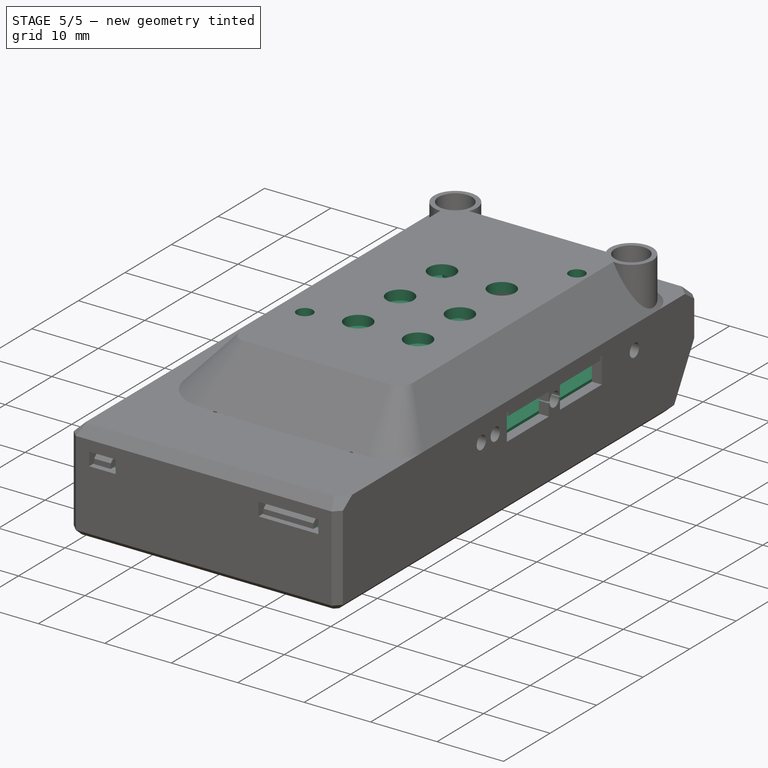
[diagram: stage 5 of 5 — iso view after this stage's code; geometry added in this stage tinted green]
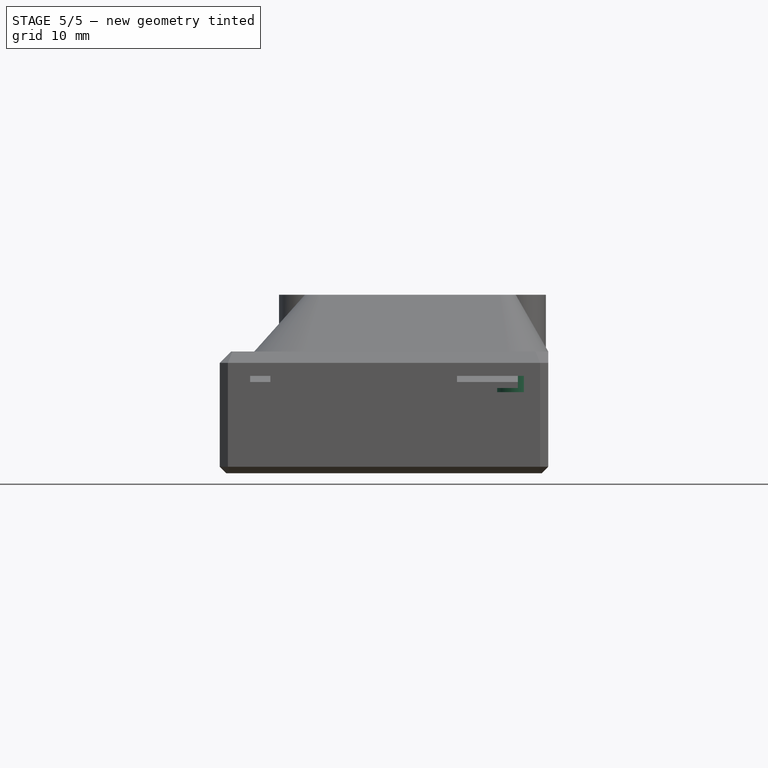
[diagram: stage 5 of 5 — front view after this stage's code; geometry added in this stage tinted green]
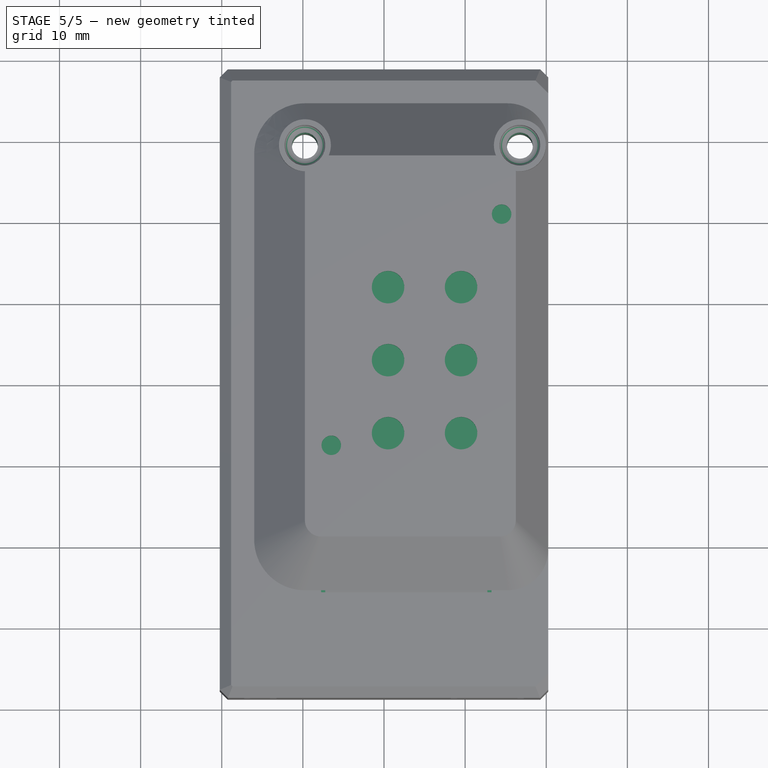
[diagram: stage 5 of 5 — top view after this stage's code; geometry added in this stage tinted green]
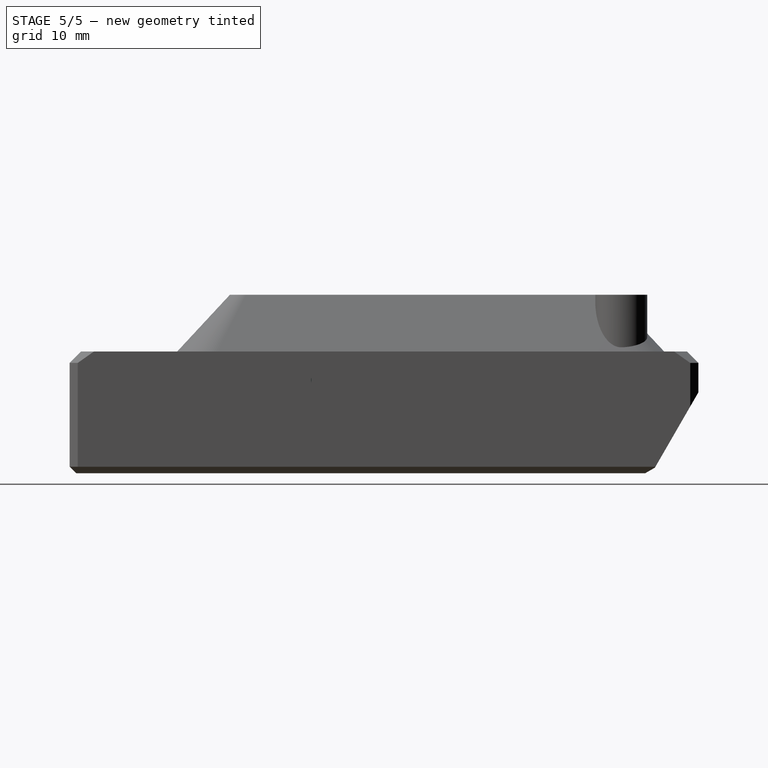
[diagram: stage 5 of 5 — right view after this stage's code; geometry added in this stage tinted green]
FEATURE [Sketcher::SketchObject] Sketch035  label="Edison cover 009 screw holes pocket through all"
  Placement = pos=(0,0,19) rot=(0,0,1;0rad)
  Support = -> Pocket012011 [Face37]
  sketch-geometry (2):
    g0: Circle CenterX=-9.75 CenterY=29.25 CenterZ=0 NormalX=0 NormalY=0 NormalZ=1 Radius=1.6
    g1: Circle CenterX=16.75 CenterY=29.25 CenterZ=0 NormalX=0 NormalY=0 NormalZ=1 Radius=1.6
  constraints (6):
    c: Radius(g0) = 1.6
    c: Radius(g1) = 1.6
    c: DistanceY(g-1,g0) = 29.25
    c: DistanceX(g0,g-1) = 9.75
    c: DistanceX(g0,g1) = 26.5
    c: DistanceY(g-1,g1) = 29.25
FEATURE [PartDesign::Pocket] Pocket012012  label="Edison cover 009"
  Length = 5
  Sketch = -> Sketch035
  Type = 1
FEATURE [Sketcher::SketchObject] Sketch014  label="Edison cover 010 holes for screw tops, pocket through all"
  Placement = pos=(0,0,22) rot=(0,0,1;0rad)
  Support = -> Pocket012012 [Face7]
  sketch-geometry (14):
    g0: Circle CenterX=-6.5 CenterY=-7.75 CenterZ=0 NormalX=0 NormalY=0 NormalZ=1 Radius=1.2
    g1: Circle CenterX=14.5 CenterY=20.75 CenterZ=0 NormalX=0 NormalY=0 NormalZ=1 Radius=1.2
    g2: Circle CenterX=0.5 CenterY=11.75 CenterZ=0 NormalX=0 NormalY=0 NormalZ=1 Radius=2
    g3: Circle CenterX=0.5 CenterY=2.75 CenterZ=0 NormalX=0 NormalY=0 NormalZ=1 Radius=2
    g4: Circle CenterX=0.5 CenterY=-6.25 CenterZ=0 NormalX=0 NormalY=0 NormalZ=1 Radius=2
    g5: Circle CenterX=9.5 CenterY=-6.25 CenterZ=0 NormalX=0 NormalY=0 NormalZ=1 Radius=2
    g6: Circle CenterX=9.5 CenterY=2.75 CenterZ=0 NormalX=0 NormalY=0 NormalZ=1 Radius=2
    g7: Circle CenterX=9.5 CenterY=11.75 CenterZ=0 NormalX=0 NormalY=0 NormalZ=1 Radius=2
    g8: LineSegment [constr] StartX=0.5 StartY=20.75 StartZ=0 EndX=0.5 EndY=-6.25 EndZ=0
    g9: LineSegment [constr] StartX=9.5 StartY=-6.25 StartZ=0 EndX=9.5 EndY=20.75 EndZ=0
    g10: LineSegment [constr] StartX=0.5 StartY=20.75 StartZ=0 EndX=14.5 EndY=20.75 EndZ=0
    g11: LineSegment [constr] StartX=0.5 StartY=11.75 StartZ=0 EndX=9.5 EndY=11.75 EndZ=0
    g12: LineSegment [constr] StartX=0.5 StartY=2.75 StartZ=0 EndX=9.5 EndY=2.75 EndZ=0
    g13: LineSegment [constr] StartX=0.5 StartY=-6.25 StartZ=0 EndX=9.5 EndY=-6.25 EndZ=0
  constraints (42):
    c: Radius(g0) = 1.2
    c: Radius(g1) = 1.2
    c: DistanceY(g-1,g1) = 20.75
    c: DistanceX(g-1,g1) = 14.5
    c: DistanceY(g0,g-1) = 7.75
    c: DistanceX(g0,g-1) = 6.5
    c: Radius(g2) = 2
    c: Equal(g2,g3)
    c: Equal(g2,g6)
    c: Equal(g2,g7)
    c: Equal(g2,g4)
    c: Equal(g2,g5)
    c: Vertical(g8)
    c: Coincident(g9,g5)
    c: Vertical(g9)
    c: Coincident(g10,g1)
    c: Horizontal(g10)
    c: PointOnObject(g11,g9)
    c: Horizontal(g11)
    c: PointOnObject(g12,g9)
    c: Horizontal(g12)
    c: Coincident(g13,g5)
    c: Horizontal(g13)
    c: Coincident(g4,g8)
    c: PointOnObject(g3,g8)
    c: PointOnObject(g2,g8)
    c: PointOnObject(g9,g10)
    c: DistanceX(g5,g1) = 5
    c: PointOnObject(g2,g11)
    c: PointOnObject(g3,g12)
    c: PointOnObject(g6,g9)
    c: PointOnObject(g6,g12)
    c: PointOnObject(g7,g9)
    c: PointOnObject(g7,g11)
    c: DistanceY(g8,g8) = 27
    c: DistanceX(g4,g5) = 9
    c: Coincident(g13,g4)
    c: Coincident(g2,g11)
    c: Coincident(g3,g12)
    c: Coincident(g8,g10)
    c: DistanceY(g2,g8) = 9
    c: DistanceY(g3,g2) = 9
FEATURE [PartDesign::Pocket] Pocket012013  label="Edison cover 010"
  Length = 5
  Sketch = -> Sketch014
  Type = 1
FEATURE [PartDesign::Pad] Pad011  label="Battery cover 001"
  Length = 0.5
  Length2 = 100
  Placement = pos=(0,0,9) rot=(0,0,1;0rad)
  Sketch = -> Sketch008
  Type = 0
FEATURE [Sketcher::SketchObject] Sketch009  label="Battery cover 002 screw holes pocket through all"
  Placement = pos=(0,0,9.5) rot=(0,0,1;0rad)
  Support = -> Pad011 [Face14]
  sketch-geometry (5):
    g0: Circle CenterX=-9.75 CenterY=29.25 CenterZ=0 NormalX=0 NormalY=0 NormalZ=1 Radius=1.6
    g1: Circle CenterX=16.75 CenterY=29.25 CenterZ=0 NormalX=0 NormalY=0 NormalZ=1 Radius=1.6
    g2: LineSegment [constr] StartX=-9.75 StartY=29.25 StartZ=0 EndX=16.75 EndY=29.25 EndZ=0
    g3: LineSegment [constr] StartX=9.75 StartY=29.25 StartZ=0 EndX=9.75 EndY=29.45 EndZ=0
    g4: Circle CenterX=9.75 CenterY=29.45 CenterZ=0 NormalX=0 NormalY=0 NormalZ=1 Radius=1.2
  constraints (14):
    c: Radius(g1) = 1.6
    c: Radius(g0) = 1.6
    c: Coincident(g2,g0)
    c: Coincident(g2,g1)
    c: Horizontal(g2)
    c: DistanceX(g2,g2) = 26.5
    c: PointOnObject(g3,g2)
    c: Vertical(g3)
    c: DistanceY(g3,g3) = 0.2
    c: DistanceX(g3,g1) = 7
    c: Coincident(g4,g3)
    c: Radius(g4) = 1.2
    c: DistanceY(g-1,g0) = 29.25
    c: DistanceX(g0,g-1) = 9.75
FEATURE [PartDesign::Pocket] Pocket012014  label="Battery cover 002"
  Length = 5
  Placement = pos=(0,0,9) rot=(0,0,1;0rad)
  Sketch = -> Sketch009
  Type = 1
FEATURE [Sketcher::SketchObject] Sketch010  label="Battery cover 003 bolt risers pad 2.5mm"
  ExternalGeometry = -> [Pocket012014]
  Placement = pos=(0,0,9.5) rot=(0,0,1;0rad)
  Support = -> Pocket012014 [Face4]
  sketch-geometry (13):
    g0: Circle CenterX=-9.75 CenterY=29.25 CenterZ=0 NormalX=0 NormalY=0 NormalZ=1 Radius=1.6
    g1: Circle CenterX=-9.75 CenterY=29.25 CenterZ=0 NormalX=0 NormalY=0 NormalZ=1 Radius=2.8
    g2: LineSegment [constr] StartX=-9.75 StartY=29.25 StartZ=0 EndX=16.75 EndY=29.25 EndZ=0
    g3: LineSegment [constr] StartX=16.75 StartY=29.25 StartZ=0 EndX=16.75 EndY=-11.75 EndZ=0
    g4: LineSegment [constr] StartX=16.75 StartY=-11.75 StartZ=0 EndX=-9.75 EndY=-11.75 EndZ=0
    g5: LineSegment [constr] StartX=-9.75 StartY=-11.75 StartZ=0 EndX=-9.75 EndY=29.25 EndZ=0
    g6: ArcOfCircle CenterX=16.75 CenterY=29.25 CenterZ=0 NormalX=0 NormalY=0 NormalZ=1 Radius=1.6 StartAngle=0.355421 EndAngle=5.92776
    g7: ArcOfCircle CenterX=16.75 CenterY=29.25 CenterZ=0 NormalX=0 NormalY=0 NormalZ=1 Radius=2.8 StartAngle=1.00544 EndAngle=5.27774
    g8: LineSegment StartX=18.25 StartY=31.6143 StartZ=0 EndX=18.25 EndY=29.8068 EndZ=0
    g9: LineSegment StartX=18.25 StartY=28.6932 StartZ=0 EndX=18.25 EndY=26.8857 EndZ=0
    g10: ArcOfCircle CenterX=16.75 CenterY=-11.75 CenterZ=0 NormalX=0 NormalY=0 NormalZ=1 Radius=2.8 StartAngle=1.00544 EndAngle=5.27774
    g11: LineSegment StartX=18.25 StartY=-9.38568 StartZ=0 EndX=18.25 EndY=-14.1143 EndZ=0
    g12: Circle CenterX=-9.75 CenterY=-11.75 CenterZ=0 NormalX=0 NormalY=0 NormalZ=1 Radius=2.8
  constraints (35):
    c: Radius(g0) = 1.6
    c: Coincident(g1,g0)
    c: Radius(g1) = 2.8
    c: Coincident(g2,g3)
    c: Coincident(g3,g4)
    c: Coincident(g4,g5)
    c: Coincident(g5,g2)
    c: Horizontal(g2)
    c: Horizontal(g4)
    c: Vertical(g3)
    c: Vertical(g5)
    c: Coincident(g2,g0)
    c: DistanceX(g2,g2) = 26.5
    c: DistanceY(g3,g3) = 41
    c: Coincident(g6,g2)
    c: Coincident(g7,g2)
    c: Radius(g7) = 2.8
    c: Coincident(g8,g7)
    c: Coincident(g8,g6)
    c: Coincident(g9,g6)
    c: Coincident(g9,g7)
    c: Coincident(g10,g3)
    c: Radius(g10) = 2.8
    c: Coincident(g11,g10)
    c: Coincident(g10,g11)
    c: Coincident(g12,g4)
    c: Radius(g12) = 2.8
    c: Coincident(g0,g-3)
    c: Vertical(g8)
    c: Vertical(g9)
    c: Radius(g6) = 1.6
    c: PointOnObject(g7,g-5)
    c: PointOnObject(g7,g-4)
    c: PointOnObject(g10,g-4)
    c: PointOnObject(g10,g-4)
FEATURE [PartDesign::Pad] Pad012  label="Battery cover 003"
  Length = 2.5
  Length2 = 100
  Placement = pos=(0,0,9) rot=(0,0,1;0rad)
  Sketch = -> Sketch010
  Type = 0
FEATURE [Sketcher::SketchObject] Sketch011  label="Battery cover 004 bolt pins pad 1.5mm"
  ExternalGeometry = -> [Pad012]
  Placement = pos=(0,0,12) rot=(0,0,1;0rad)
  Support = -> Pad012 [Face22]
  sketch-geometry (2):
    g0: Circle CenterX=-9.75 CenterY=-11.75 CenterZ=0 NormalX=0 NormalY=0 NormalZ=1 Radius=1.1
    g1: Circle CenterX=16.75 CenterY=-11.75 CenterZ=0 NormalX=0 NormalY=0 NormalZ=1 Radius=1.1
  constraints (4):
    c: Radius(g1) = 1.1
    c: Radius(g0) = 1.1
    c: Coincident(g0,g-3)
    c: Coincident(g1,g-4)
FEATURE [PartDesign::Pad] Pad013  label="Battery cover 004"
  Length = 1.5
  Length2 = 100
  Placement = pos=(0,0,9) rot=(0,0,1;0rad)
  Sketch = -> Sketch011
  Type = 0
FEATURE [Sketcher::SketchObject] Sketch018  label="Base 009 fill trim gap pad to first"
  ExternalGeometry = -> [Pocket012025]
  Placement = pos=(-6.25,0,0) rot=(0.57735,0.57735,0.57735;2.0944rad)
  Support = -> Pocket012025 [Face9]
  sketch-geometry (4):
    g0: LineSegment StartX=37.25 StartY=9 StartZ=0 EndX=37.25 EndY=7.36122 EndZ=0
    g1: LineSegment StartX=37.25 StartY=7.36122 StartZ=0 EndX=35.3094 EndY=4 EndZ=0
    g2: LineSegment StartX=35.3094 StartY=4 StartZ=0 EndX=34.3632 EndY=4 EndZ=0
    g3: LineSegment StartX=34.3632 StartY=4 StartZ=0 EndX=37.25 EndY=9 EndZ=0
  constraints (4):
    c: Coincident(g0,g1)
    c: Coincident(g1,g2)
    c: Coincident(g2,g3)
    c: Coincident(g3,g0)
FEATURE [PartDesign::Fillet] Fillet  label="Edison cover 011 fillet bolt holes 0.8mm"
  Base = -> Pocket012013 [Edge102,Edge120]
  Radius = 0.8
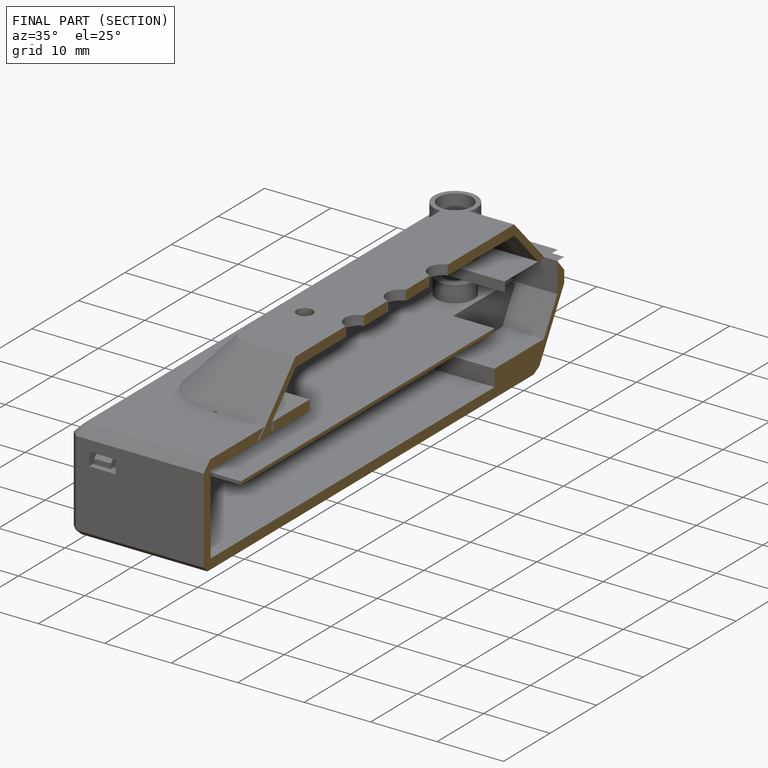
[diagram: finished part — half-section view (interior)]
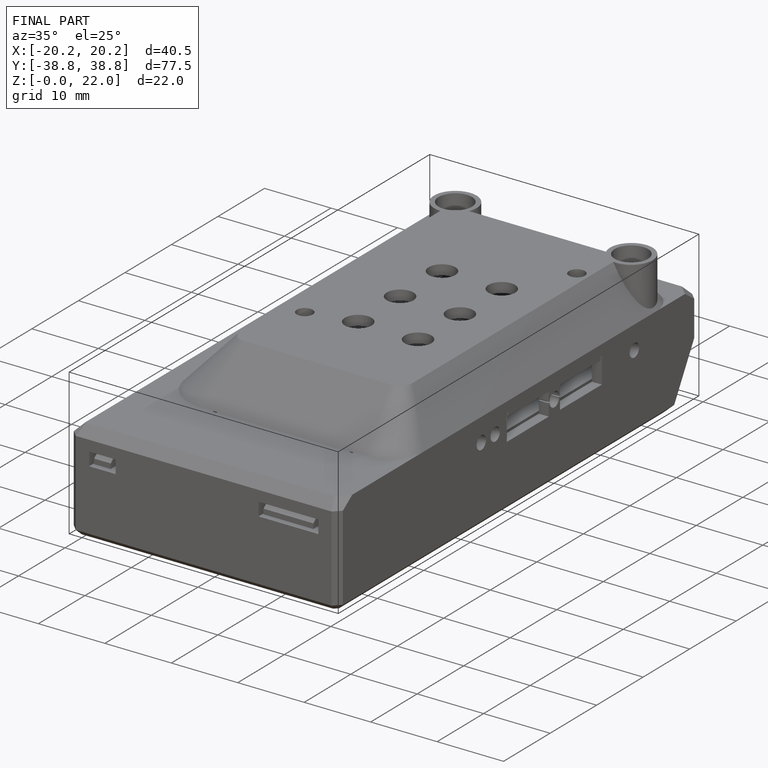
[diagram: finished part — iso view with bounding-box wireframe]
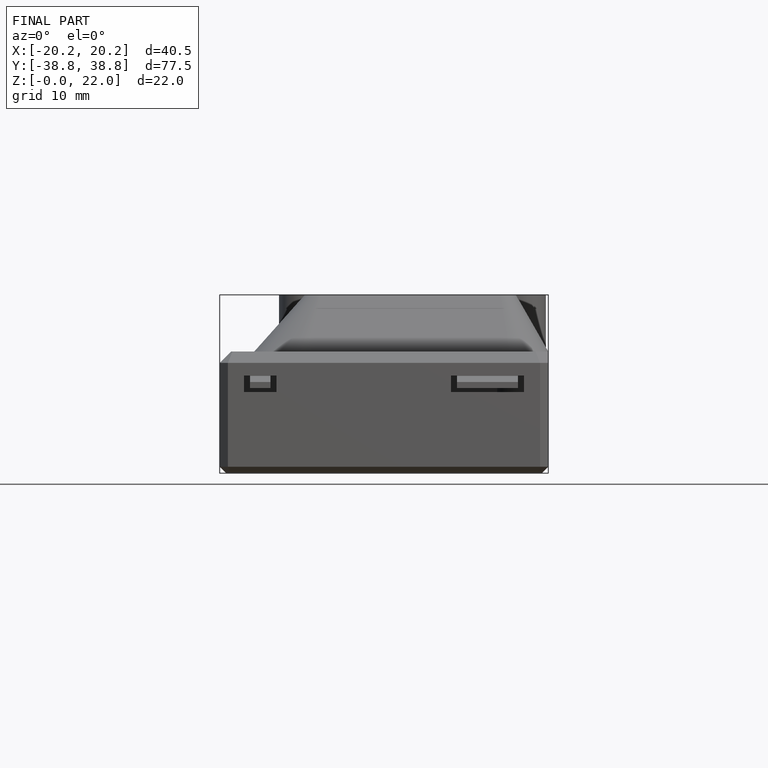
[diagram: finished part — front view with bounding-box wireframe]
